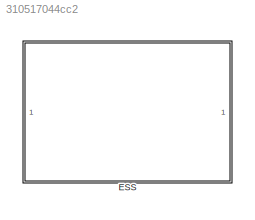
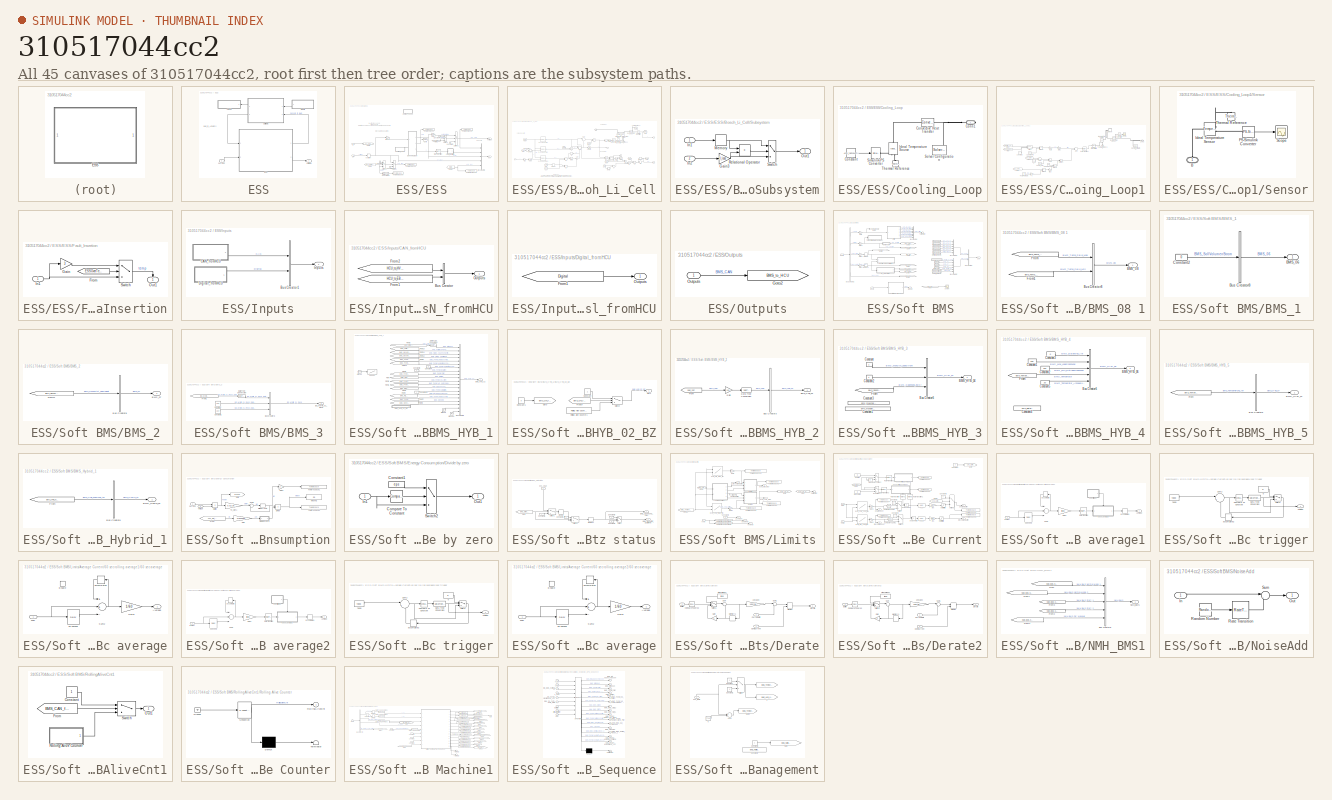
[diagram: thumbnail index - all 45 canvases of the model, root first then tree order]
MODEL slx_310517044cc2
KIND library
CONFIG AbsTol = auto
CONFIG EnableMultiTasking = off
CONFIG FixedStep = auto
CONFIG MaxStep = auto
CONFIG MinStep = auto
CONFIG RelTol = 1e-3
CONFIG SampleTimeConstraint = Unconstrained
CONFIG Solver = VariableStepAuto
CONFIG SolverName = VariableStepAuto
CONFIG StartTime = 0.0
CONFIG StopTime = 10.0
BLOCK [SubSystem] ESS
  Ports = [1, 1]
  RequestExecContextInheritance = off
  Variant = off
BLOCK [SubSystem] ESS/ESS
  Ports = [2, 2]
  RequestExecContextInheritance = off
  Variant = off
BLOCK [Memory] ESS/ESS/0 current
  InheritSampleTime = on
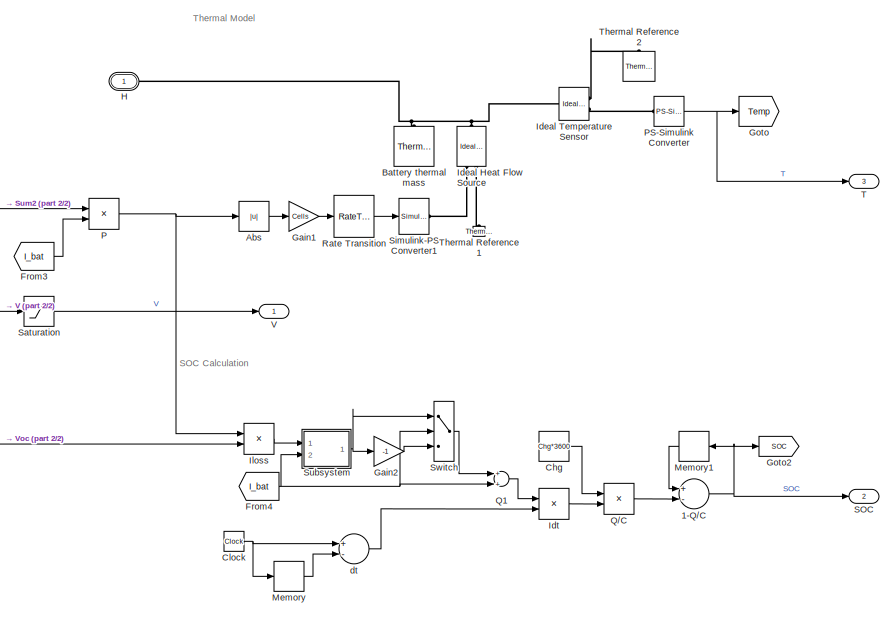
[diagram: ESS/ESS/Bosch_Li_Cell - part 1/2, right side, full height]
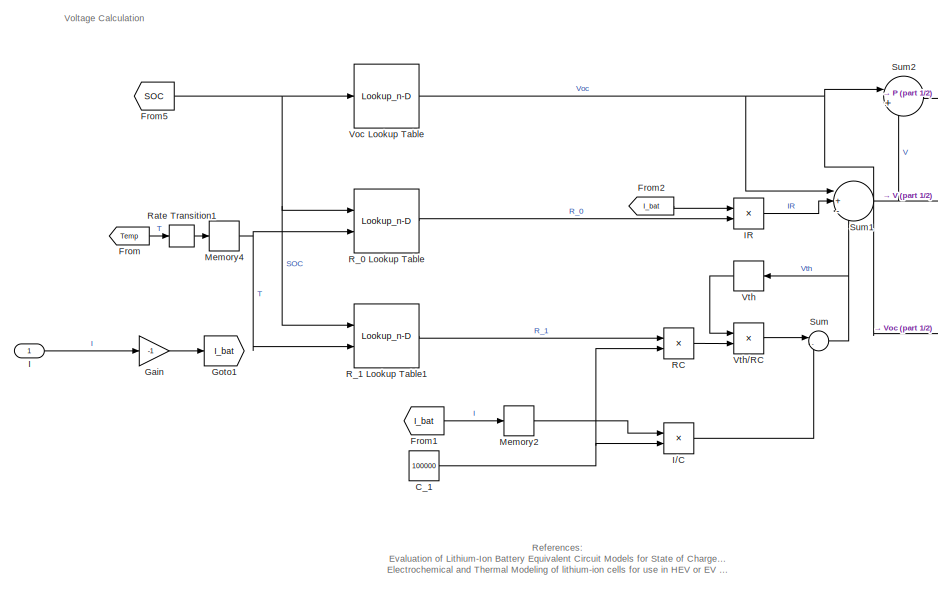
[diagram: ESS/ESS/Bosch_Li_Cell - part 2/2, left side, full height]
BLOCK [SubSystem] ESS/ESS/Bosch_Li_Cell
  Ports = [1, 3, 0, 0, 0, 1]
  RequestExecContextInheritance = off
  Variant = off
BLOCK [Sum] ESS/ESS/Bosch_Li_Cell/1-Q//C
  InputSameDT = off
  Inputs = +-
  OutDataTypeStr = Inherit: Inherit via internal rule
  Ports = [2, 1]
  SaturateOnIntegerOverflow = off
BLOCK [Abs] ESS/ESS/Bosch_Li_Cell/Abs
  SaturateOnIntegerOverflow = off
BLOCK [Reference] ESS/ESS/Bosch_Li_Cell/Battery thermal mass  REF=fl_lib/Thermal/Thermal Elements/Thermal Mass
  Ports = [0, 0, 0, 0, 0, 1]
  SourceBlock = fl_lib/Thermal/Thermal Elements/Thermal Mass
  SourceProductBaseCode = SS
  SourceProductName = Simscape
  SourceType = Thermal Mass
BLOCK [Constant] ESS/ESS/Bosch_Li_Cell/C_1
  Value = 100000
BLOCK [Constant] ESS/ESS/Bosch_Li_Cell/Chg
  Value = Chg*3600
BLOCK [Clock] ESS/ESS/Bosch_Li_Cell/Clock
BLOCK [From] ESS/ESS/Bosch_Li_Cell/From
  GotoTag = Temp
BLOCK [From] ESS/ESS/Bosch_Li_Cell/From1
  GotoTag = I_bat
BLOCK [From] ESS/ESS/Bosch_Li_Cell/From2
  GotoTag = I_bat
BLOCK [From] ESS/ESS/Bosch_Li_Cell/From3
  GotoTag = I_bat
BLOCK [From] ESS/ESS/Bosch_Li_Cell/From4
  GotoTag = I_bat
BLOCK [From] ESS/ESS/Bosch_Li_Cell/From5
  GotoTag = SOC
BLOCK [Gain] ESS/ESS/Bosch_Li_Cell/Gain
  Gain = -1
  OutDataTypeStr = Inherit: Inherit via internal rule
  ParamDataTypeStr = Inherit: Inherit via internal rule
  SaturateOnIntegerOverflow = off
BLOCK [Gain] ESS/ESS/Bosch_Li_Cell/Gain1
  Gain = Cells
  OutDataTypeStr = Inherit: Inherit via internal rule
  ParamDataTypeStr = Inherit: Inherit via internal rule
  SaturateOnIntegerOverflow = off
BLOCK [Gain] ESS/ESS/Bosch_Li_Cell/Gain2
  Gain = -1
  OutDataTypeStr = Inherit: Inherit via internal rule
  ParamDataTypeStr = Inherit: Inherit via internal rule
  SaturateOnIntegerOverflow = off
BLOCK [Goto] ESS/ESS/Bosch_Li_Cell/Goto
  GotoTag = Temp
BLOCK [Goto] ESS/ESS/Bosch_Li_Cell/Goto1
  GotoTag = I_bat
BLOCK [Goto] ESS/ESS/Bosch_Li_Cell/Goto2
  GotoTag = SOC
BLOCK [PMIOPort] ESS/ESS/Bosch_Li_Cell/H
  Port = 1
  Side = Left
  Tag = PMCPort
BLOCK [Inport] ESS/ESS/Bosch_Li_Cell/I
  IconDisplay = Port number
BLOCK [Product] ESS/ESS/Bosch_Li_Cell/I//C
  InputSameDT = off
  Inputs = */
  OutDataTypeStr = Inherit: Inherit via internal rule
  Ports = [2, 1]
  RndMeth = Floor
  SaturateOnIntegerOverflow = off
BLOCK [Product] ESS/ESS/Bosch_Li_Cell/IR
  InputSameDT = off
  Inputs = **
  OutDataTypeStr = Inherit: Inherit via internal rule
  Ports = [2, 1]
  RndMeth = Floor
  SaturateOnIntegerOverflow = off
BLOCK [Reference] ESS/ESS/Bosch_Li_Cell/Ideal Heat Flow Source  REF=fl_lib/Thermal/Thermal Sources/Ideal Heat Flow
Source
  Ports = [0, 0, 0, 0, 0, 1, 2]
  SourceBlock = fl_lib/Thermal/Thermal Sources/Ideal Heat Flow\nSource
  SourceProductBaseCode = SS
  SourceProductName = Simscape
  SourceType = Ideal Heat Flow\nSource
BLOCK [Reference] ESS/ESS/Bosch_Li_Cell/Ideal Temperature Sensor  REF=fl_lib/Thermal/Thermal Sensors/Ideal Temperature
Sensor
  Ports = [0, 0, 0, 0, 0, 1, 2]
  SourceBlock = fl_lib/Thermal/Thermal Sensors/Ideal Temperature\nSensor
  SourceProductBaseCode = SS
  SourceProductName = Simscape
  SourceType = Ideal Temperature\nSensor
BLOCK [Product] ESS/ESS/Bosch_Li_Cell/Idt
  InputSameDT = off
  Inputs = **
  OutDataTypeStr = Inherit: Inherit via internal rule
  Ports = [2, 1]
  RndMeth = Floor
  SaturateOnIntegerOverflow = off
BLOCK [Product] ESS/ESS/Bosch_Li_Cell/Iloss
  InputSameDT = off
  Inputs = */
  OutDataTypeStr = Inherit: Inherit via internal rule
  Ports = [2, 1]
  RndMeth = Floor
  SaturateOnIntegerOverflow = off
BLOCK [Memory] ESS/ESS/Bosch_Li_Cell/Memory
  InheritSampleTime = on
BLOCK [Memory] ESS/ESS/Bosch_Li_Cell/Memory1
  InheritSampleTime = on
  X0 = ess.plant.initial_soc/100
BLOCK [Memory] ESS/ESS/Bosch_Li_Cell/Memory2
  InheritSampleTime = on
BLOCK [Memory] ESS/ESS/Bosch_Li_Cell/Memory4
  X0 = 298
BLOCK [Product] ESS/ESS/Bosch_Li_Cell/P
  InputSameDT = off
  Inputs = **
  OutDataTypeStr = Inherit: Inherit via internal rule
  Ports = [2, 1]
  RndMeth = Floor
  SaturateOnIntegerOverflow = off
BLOCK [Reference] ESS/ESS/Bosch_Li_Cell/PS-Simulink Converter  REF=nesl_utility/PS-Simulink
Converter
  Ports = [0, 1, 0, 0, 0, 1]
  SourceBlock = nesl_utility/PS-Simulink\nConverter
  SourceProductBaseCode = SS
  SourceProductName = Simscape
  SourceType = PS-Simulink\nConverter
BLOCK [Product] ESS/ESS/Bosch_Li_Cell/Q//C
  InputSameDT = off
  Inputs = /*
  OutDataTypeStr = Inherit: Inherit via internal rule
  Ports = [2, 1]
  RndMeth = Floor
  SaturateOnIntegerOverflow = off
BLOCK [Sum] ESS/ESS/Bosch_Li_Cell/Q1
  InputSameDT = off
  OutDataTypeStr = Inherit: Inherit via internal rule
  Ports = [2, 1]
  SaturateOnIntegerOverflow = off
BLOCK [Product] ESS/ESS/Bosch_Li_Cell/RC
  InputSameDT = off
  Inputs = **
  OutDataTypeStr = Inherit: Inherit via internal rule
  Ports = [2, 1]
  RndMeth = Floor
  SaturateOnIntegerOverflow = off
BLOCK [Lookup_n-D] ESS/ESS/Bosch_Li_Cell/R_0 Lookup Table
  BreakpointsForDimension1 = SOC_bp
  BreakpointsForDimension2 = T_bp
  InternalRulePriority = Speed
  Ports = [2, 1]
  RndMeth = Simplest
  Table = R_0
  UseLastTableValue = on
BLOCK [Lookup_n-D] ESS/ESS/Bosch_Li_Cell/R_1 Lookup Table1
  BreakpointsForDimension1 = SOC_bp
  BreakpointsForDimension2 = T_bp
  InternalRulePriority = Speed
  Ports = [2, 1]
  RndMeth = Simplest
  Table = R_1
  UseLastTableValue = on
BLOCK [RateTransition] ESS/ESS/Bosch_Li_Cell/Rate Transition
BLOCK [RateTransition] ESS/ESS/Bosch_Li_Cell/Rate Transition1
BLOCK [Outport] ESS/ESS/Bosch_Li_Cell/SOC
  IconDisplay = Port number
  Port = 2
BLOCK [Saturate] ESS/ESS/Bosch_Li_Cell/Saturation
  InputPortMap = u0
  LowerLimit = 2.8
  Ports = [1, 1]
  UpperLimit = 4.2
BLOCK [Reference] ESS/ESS/Bosch_Li_Cell/Simulink-PS Converter1  REF=nesl_utility/Simulink-PS
Converter
  Ports = [1, 0, 0, 0, 0, 0, 1]
  SourceBlock = nesl_utility/Simulink-PS\nConverter
  SourceProductBaseCode = SS
  SourceProductName = Simscape
  SourceType = Simulink-PS\nConverter
BLOCK [SubSystem] ESS/ESS/Bosch_Li_Cell/Subsystem
  Ports = [2, 1]
  RequestExecContextInheritance = off
  Variant = off
BLOCK [Gain] ESS/ESS/Bosch_Li_Cell/Subsystem/Gain3
  Gain = I_loss
  OutDataTypeStr = Inherit: Inherit via internal rule
  ParamDataTypeStr = Inherit: Inherit via internal rule
  SaturateOnIntegerOverflow = off
BLOCK [Inport] ESS/ESS/Bosch_Li_Cell/Subsystem/In1
  IconDisplay = Port number
BLOCK [Inport] ESS/ESS/Bosch_Li_Cell/Subsystem/In2
  IconDisplay = Port number
  Port = 2
BLOCK [Memory] ESS/ESS/Bosch_Li_Cell/Subsystem/Memory
  InheritSampleTime = on
BLOCK [Outport] ESS/ESS/Bosch_Li_Cell/Subsystem/Out1
  IconDisplay = Port number
BLOCK [RelationalOperator] ESS/ESS/Bosch_Li_Cell/Subsystem/Relational Operator
  InputSameDT = off
  Operator = >
  OutDataTypeStr = boolean
  Ports = [2, 1]
BLOCK [Switch] ESS/ESS/Bosch_Li_Cell/Subsystem/Switch
  Criteria = u2 > Threshold
  InputSameDT = off
  SaturateOnIntegerOverflow = off
BLOCK [Sum] ESS/ESS/Bosch_Li_Cell/Sum
  IconShape = round
  InputSameDT = off
  Inputs = |-+
  OutDataTypeStr = Inherit: Inherit via internal rule
  Ports = [2, 1]
  SaturateOnIntegerOverflow = off
BLOCK [Sum] ESS/ESS/Bosch_Li_Cell/Sum1
  IconShape = round
  InputSameDT = off
  Inputs = |+--
  OutDataTypeStr = Inherit: Inherit via internal rule
  Ports = [3, 1]
  SaturateOnIntegerOverflow = off
BLOCK [Sum] ESS/ESS/Bosch_Li_Cell/Sum2
  IconShape = round
  InputSameDT = off
  Inputs = |+-
  OutDataTypeStr = Inherit: Inherit via internal rule
  Ports = [2, 1]
  SaturateOnIntegerOverflow = off
BLOCK [Switch] ESS/ESS/Bosch_Li_Cell/Switch
  InputSameDT = off
  SaturateOnIntegerOverflow = off
BLOCK [Outport] ESS/ESS/Bosch_Li_Cell/T
  IconDisplay = Port number
  Port = 3
BLOCK [Reference] ESS/ESS/Bosch_Li_Cell/Thermal Reference1  REF=fl_lib/Thermal/Thermal Elements/Thermal Reference
  Ports = [0, 0, 0, 0, 0, 1]
  SourceBlock = fl_lib/Thermal/Thermal Elements/Thermal Reference
  SourceProductBaseCode = SS
  SourceProductName = Simscape
  SourceType = Thermal Reference
BLOCK [Reference] ESS/ESS/Bosch_Li_Cell/Thermal Reference2  REF=fl_lib/Thermal/Thermal Elements/Thermal Reference
  Ports = [0, 0, 0, 0, 0, 1]
  SourceBlock = fl_lib/Thermal/Thermal Elements/Thermal Reference
  SourceProductBaseCode = SS
  SourceProductName = Simscape
  SourceType = Thermal Reference
BLOCK [Outport] ESS/ESS/Bosch_Li_Cell/V
  IconDisplay = Port number
BLOCK [Lookup_n-D] ESS/ESS/Bosch_Li_Cell/Voc Lookup Table
  BreakpointsForDimension1 = SOC_bp
  InternalRulePriority = Speed
  NumberOfTableDimensions = 1
  Ports = [1, 1]
  RndMeth = Simplest
  Table = Em
BLOCK [Memory] ESS/ESS/Bosch_Li_Cell/Vth
  InheritSampleTime = on
  LinearizeAsDelay = on
BLOCK [Product] ESS/ESS/Bosch_Li_Cell/Vth//RC
  InputSameDT = off
  Inputs = */
  OutDataTypeStr = Inherit: Inherit via internal rule
  Ports = [2, 1]
  RndMeth = Floor
  SaturateOnIntegerOverflow = off
BLOCK [Sum] ESS/ESS/Bosch_Li_Cell/dt
  InputSameDT = off
  Inputs = +-
  OutDataTypeStr = Inherit: Inherit via internal rule
  Ports = [2, 1]
  SaturateOnIntegerOverflow = off
BLOCK [BusCreator] ESS/ESS/Bus Creator1
  DisplayOption = bar
  InheritFromInputs = on
  Inputs = 5
  Ports = [5, 1]
BLOCK [Constant] ESS/ESS/Constant1
  Value = 0
BLOCK [Constant] ESS/ESS/Constant2
  Value = 0
BLOCK [Constant] ESS/ESS/Constant3
  Value = 0
BLOCK [Constant] ESS/ESS/Constant4
  Value = 0
BLOCK [SubSystem] ESS/ESS/Cooling_Loop
  Ports = [0, 0, 0, 0, 0, 0, 1]
  RequestExecContextInheritance = off
  Variant = off
BLOCK [PMIOPort] ESS/ESS/Cooling_Loop/Conn1
  Port = 1
  Side = Right
BLOCK [Constant] ESS/ESS/Cooling_Loop/Constant
  Value = Atm_temp+273+0.5
BLOCK [Reference] ESS/ESS/Cooling_Loop/Convective Heat Transfer  REF=fl_lib/Thermal/Thermal Elements/Convective Heat
Transfer
  Ports = [0, 0, 0, 0, 0, 1, 1]
  SourceBlock = fl_lib/Thermal/Thermal Elements/Convective Heat\nTransfer
  SourceProductBaseCode = SS
  SourceProductName = Simscape
  SourceType = Convective Heat\nTransfer
BLOCK [Reference] ESS/ESS/Cooling_Loop/Ideal Temperature Source  REF=fl_lib/Thermal/Thermal Sources/Ideal Temperature
Source
  Ports = [0, 0, 0, 0, 0, 1, 2]
  SourceBlock = fl_lib/Thermal/Thermal Sources/Ideal Temperature\nSource
  SourceProductBaseCode = SS
  SourceProductName = Simscape
  SourceType = Ideal Temperature\nSource
BLOCK [Reference] ESS/ESS/Cooling_Loop/Simulink-PS Converter  REF=nesl_utility/Simulink-PS
Converter
  Ports = [1, 0, 0, 0, 0, 0, 1]
  SourceBlock = nesl_utility/Simulink-PS\nConverter
  SourceProductBaseCode = SS
  SourceProductName = Simscape
  SourceType = Simulink-PS\nConverter
BLOCK [Reference] ESS/ESS/Cooling_Loop/Solver Configuration  REF=nesl_utility/Solver
Configuration
  Ports = [0, 0, 0, 0, 0, 0, 1]
  SourceBlock = nesl_utility/Solver\nConfiguration
  SourceProductBaseCode = SS
  SourceProductName = Simscape
  SourceType = Solver\nConfiguration
BLOCK [Reference] ESS/ESS/Cooling_Loop/Thermal Reference  REF=fl_lib/Thermal/Thermal Elements/Thermal Reference
  Ports = [0, 0, 0, 0, 0, 1]
  SourceBlock = fl_lib/Thermal/Thermal Elements/Thermal Reference
  SourceProductBaseCode = SS
  SourceProductName = Simscape
  SourceType = Thermal Reference
BLOCK [SubSystem] ESS/ESS/Cooling_Loop1
  Commented = on
  Ports = [0, 0, 0, 0, 0, 1]
  RequestExecContextInheritance = off
  Variant = off
BLOCK [Constant] ESS/ESS/Cooling_Loop1/ACcompRPM
  Value = 8600
BLOCK [Sum] ESS/ESS/Cooling_Loop1/Add
  InputSameDT = off
  Inputs = --
  OutDataTypeStr = Inherit: Inherit via internal rule
  Ports = [2, 1]
  SaturateOnIntegerOverflow = off
BLOCK [Sum] ESS/ESS/Cooling_Loop1/Add2
  InputSameDT = off
  Inputs = +-
  OutDataTypeStr = Inherit: Inherit via internal rule
  Ports = [2, 1]
  SaturateOnIntegerOverflow = off
BLOCK [Sum] ESS/ESS/Cooling_Loop1/Add4
  InputSameDT = off
  Inputs = +-
  OutDataTypeStr = Inherit: Inherit via internal rule
  Ports = [2, 1]
  SaturateOnIntegerOverflow = off
BLOCK [PMIOPort] ESS/ESS/Cooling_Loop1/Conn2
  Port = 1
  Side = Left
BLOCK [Constant] ESS/ESS/Cooling_Loop1/Constant3
  Value = 0
BLOCK [Constant] ESS/ESS/Cooling_Loop1/CoolaSpecHeat
  Value = 4200
BLOCK [Product] ESS/ESS/Cooling_Loop1/Divide4
  InputSameDT = off
  Inputs = **
  OutDataTypeStr = Inherit: Inherit via internal rule
  Ports = [2, 1]
  RndMeth = Floor
  SaturateOnIntegerOverflow = off
BLOCK [Product] ESS/ESS/Cooling_Loop1/Divide5
  InputSameDT = off
  Inputs = **
  OutDataTypeStr = Inherit: Inherit via internal rule
  Ports = [2, 1]
  RndMeth = Floor
  SaturateOnIntegerOverflow = off
BLOCK [Product] ESS/ESS/Cooling_Loop1/Divide6
  InputSameDT = off
  Inputs = **
  OutDataTypeStr = Inherit: Inherit via internal rule
  Ports = [2, 1]
  RndMeth = Floor
  SaturateOnIntegerOverflow = off
BLOCK [Product] ESS/ESS/Cooling_Loop1/Divide8
  InputSameDT = off
  Inputs = **
  OutDataTypeStr = Inherit: Inherit via internal rule
  Ports = [2, 1]
  RndMeth = Floor
  SaturateOnIntegerOverflow = off
BLOCK [From] ESS/ESS/Cooling_Loop1/From
  GotoTag = ESSCompEna
  TagVisibility = global
BLOCK [From] ESS/ESS/Cooling_Loop1/From1
  GotoTag = ACComp_control
  TagVisibility = global
BLOCK [From] ESS/ESS/Cooling_Loop1/From2
  GotoTag = ess_temp
  TagVisibility = global
BLOCK [From] ESS/ESS/Cooling_Loop1/From3
  GotoTag = ESS_pump_control
  TagVisibility = global
BLOCK [Gain] ESS/ESS/Cooling_Loop1/Gain
  Gain = 1/1000
  OutDataTypeStr = Inherit: Inherit via internal rule
  ParamDataTypeStr = Inherit: Inherit via internal rule
  SaturateOnIntegerOverflow = off
BLOCK [Gain] ESS/ESS/Cooling_Loop1/Gain1
  Gain = 1/6000
  OutDataTypeStr = Inherit: Inherit via internal rule
  ParamDataTypeStr = Inherit: Inherit via internal rule
  SaturateOnIntegerOverflow = off
BLOCK [Reference] ESS/ESS/Cooling_Loop1/Ideal Heat Flow Sensor  REF=fl_lib/Thermal/Thermal Sensors/Heat Flow Rate
Sensor
  Ports = [0, 0, 0, 0, 0, 1, 2]
  SourceBlock = fl_lib/Thermal/Thermal Sensors/Heat Flow Rate\nSensor
  SourceProductBaseCode = SS
  SourceProductName = Simscape
  SourceType = Heat Flow Rate\nSensor
BLOCK [Reference] ESS/ESS/Cooling_Loop1/Ideal Heat Flow Source  REF=fl_lib/Thermal/Thermal Sources/Controlled Heat Flow
Rate Source
  Ports = [0, 0, 0, 0, 0, 1, 2]
  SourceBlock = fl_lib/Thermal/Thermal Sources/Controlled Heat Flow\nRate Source
  SourceProductBaseCode = SS
  SourceProductName = Simscape
  SourceType = Controlled Heat Flow\nRate Source
BLOCK [Constant] ESS/ESS/Cooling_Loop1/K
  Value = 273.15
BLOCK [Reference] ESS/ESS/Cooling_Loop1/PS-Simulink Converter  REF=nesl_utility/PS-Simulink
Converter
  Ports = [0, 1, 0, 0, 0, 1]
  SourceBlock = nesl_utility/PS-Simulink\nConverter
  SourceProductBaseCode = SS
  SourceProductName = Simscape
  SourceType = PS-Simulink\nConverter
BLOCK [Constant] ESS/ESS/Cooling_Loop1/PumpFlowRate
  Value = 1.8
BLOCK [RateTransition] ESS/ESS/Cooling_Loop1/Rate Transition1
BLOCK [Scope] ESS/ESS/Cooling_Loop1/Scope
  NumInputPorts = 1
  Ports = [1]
  ScopeSpecificationString = Simulink.scopes.TimeScopeBlockCfg('CurrentConfiguration', extmgr.ConfigurationSet(extmgr.Configuration('Core','General UI',true),extmgr.Configuration('Core','Source UI',true),extmgr.Configuration('Sources','WiredSimulink',true,'DataLoggingVariableName','ScopeData7'),extmgr.Configuration('Visuals','Time Domain',true,'SerializedDisplays',{struct('MinYLimReal','-1.00000','MaxYLimReal','1.00000','YLab...<+1438ch>
BLOCK [SubSystem] ESS/ESS/Cooling_Loop1/Sensor
  Ports = [0, 0, 0, 0, 0, 1]
  RequestExecContextInheritance = off
  Variant = off
BLOCK [PMIOPort] ESS/ESS/Cooling_Loop1/Sensor/B
  Port = 1
  Side = Left
BLOCK [Reference] ESS/ESS/Cooling_Loop1/Sensor/Ideal Temperature Sensor  REF=fl_lib/Thermal/Thermal Sensors/Temperature Sensor
  Ports = [0, 0, 0, 0, 0, 1, 2]
  SourceBlock = fl_lib/Thermal/Thermal Sensors/Temperature Sensor
  SourceProductBaseCode = SS
  SourceProductName = Simscape
  SourceType = Temperature Sensor
BLOCK [Reference] ESS/ESS/Cooling_Loop1/Sensor/PS-Simulink Converter  REF=nesl_utility/PS-Simulink
Converter
  Ports = [0, 1, 0, 0, 0, 1]
  SourceBlock = nesl_utility/PS-Simulink\nConverter
  SourceProductBaseCode = SS
  SourceProductName = Simscape
  SourceType = PS-Simulink\nConverter
BLOCK [Scope] ESS/ESS/Cooling_Loop1/Sensor/Scope
  NumInputPorts = 1
  Ports = [1]
  ScopeSpecificationString = Simulink.scopes.TimeScopeBlockCfg('CurrentConfiguration', extmgr.ConfigurationSet(extmgr.Configuration('Core','General UI',true),extmgr.Configuration('Core','Source UI',true),extmgr.Configuration('Sources','WiredSimulink',true,'DataLoggingVariableName','ScopeData6'),extmgr.Configuration('Visuals','Time Domain',true,'SerializedDisplays',{struct('MinYLimReal','298.14642','MaxYLimReal','298.18225','Y...<+1419ch>
BLOCK [Reference] ESS/ESS/Cooling_Loop1/Sensor/Thermal Reference  REF=fl_lib/Thermal/Thermal Elements/Thermal Reference
  Ports = [0, 0, 0, 0, 0, 1]
  SourceBlock = fl_lib/Thermal/Thermal Elements/Thermal Reference
  SourceProductBaseCode = SS
  SourceProductName = Simscape
  SourceType = Thermal Reference
BLOCK [Reference] ESS/ESS/Cooling_Loop1/Simulink-PS Converter3  REF=nesl_utility/Simulink-PS
Converter
  Ports = [1, 0, 0, 0, 0, 0, 1]
  SourceBlock = nesl_utility/Simulink-PS\nConverter
  SourceProductBaseCode = SS
  SourceProductName = Simscape
  SourceType = Simulink-PS\nConverter
BLOCK [Reference] ESS/ESS/Cooling_Loop1/Solver Configuration1  REF=nesl_utility/Solver
Configuration
  Ports = [0, 0, 0, 0, 0, 0, 1]
  SourceBlock = nesl_utility/Solver\nConfiguration
  SourceProductBaseCode = SS
  SourceProductName = Simscape
  SourceType = Solver\nConfiguration
BLOCK [Switch] ESS/ESS/Cooling_Loop1/Switch
  Criteria = u2 ~= 0
  InputSameDT = off
  SaturateOnIntegerOverflow = off
BLOCK [Reference] ESS/ESS/Cooling_Loop1/Thermal Reference3  REF=fl_lib/Thermal/Thermal Elements/Thermal Reference
  Ports = [0, 0, 0, 0, 0, 1]
  SourceBlock = fl_lib/Thermal/Thermal Elements/Thermal Reference
  SourceProductBaseCode = SS
  SourceProductName = Simscape
  SourceType = Thermal Reference
BLOCK [Constant] ESS/ESS/Cooling_Loop1/coolant_temp
  Value = 25
BLOCK [Gain] ESS/ESS/Cooling_Loop1/h
  Gain = 1000/3600
  OutDataTypeStr = Inherit: Inherit via internal rule
  ParamDataTypeStr = Inherit: Inherit via internal rule
  SaturateOnIntegerOverflow = off
BLOCK [Gain] ESS/ESS/Cooling_Loop1/tloop
  Gain = 0.01
  OutDataTypeStr = Inherit: Inherit via internal rule
  ParamDataTypeStr = Inherit: Inherit via internal rule
  SaturateOnIntegerOverflow = off
BLOCK [Inport] ESS/ESS/Crr 
  IconDisplay = Port number
  Port = 2
BLOCK [DataTypeConversion] ESS/ESS/Data Type Conversion
  OutDataTypeStr = double
  RndMeth = Floor
  SaturateOnIntegerOverflow = off
BLOCK [SubSystem] ESS/ESS/Fault_Insertion
  Ports = [1, 1]
  RequestExecContextInheritance = off
  Variant = off
BLOCK [From] ESS/ESS/Fault_Insertion/From
  GotoTag = ESSOverTemp
BLOCK [Gain] ESS/ESS/Fault_Insertion/Gain
  Gain = 3
  OutDataTypeStr = Inherit: Inherit via internal rule
  ParamDataTypeStr = Inherit: Inherit via internal rule
  SaturateOnIntegerOverflow = off
BLOCK [Inport] ESS/ESS/Fault_Insertion/In1
  IconDisplay = Port number
BLOCK [Outport] ESS/ESS/Fault_Insertion/Out1
  IconDisplay = Port number
BLOCK [Switch] ESS/ESS/Fault_Insertion/Switch
  InputSameDT = off
  SaturateOnIntegerOverflow = off
  Threshold = 1
BLOCK [From] ESS/ESS/From1
  GotoTag = ess_mainc_stat
BLOCK [From] ESS/ESS/From4
  GotoTag = SOC
  TagVisibility = global
BLOCK [From] ESS/ESS/From6
  GotoTag = ess_mainc_stat
BLOCK [Gain] ESS/ESS/Gain1
  Gain = Cells*0.9824
  OutDataTypeStr = Inherit: Inherit via internal rule
  ParamDataTypeStr = Inherit: Inherit via internal rule
  SaturateOnIntegerOverflow = off
BLOCK [Goto] ESS/ESS/Goto
  GotoTag = SOC
  TagVisibility = global
BLOCK [Goto] ESS/ESS/Goto6
  GotoTag = ess_mainc_stat
BLOCK [Inport] ESS/ESS/In 
  IconDisplay = Port number
BLOCK [RateTransition] ESS/ESS/Rate Transition
  X0 = 273.15+25
BLOCK [Switch] ESS/ESS/Switch1
  InputSameDT = off
  SaturateOnIntegerOverflow = off
  Threshold = 1
BLOCK [Switch] ESS/ESS/Switch2
  InputSameDT = off
  SaturateOnIntegerOverflow = off
  Threshold = 1
BLOCK [Switch] ESS/ESS/Switch3
  InputSameDT = off
  SaturateOnIntegerOverflow = off
  Threshold = 5
BLOCK [Switch] ESS/ESS/Switch4
  InputSameDT = off
  SaturateOnIntegerOverflow = off
  Threshold = 5
BLOCK [ToWorkspace] ESS/ESS/To Workspace1
  Decimation = WORKSPACE_DECIMATION
  MaxDataPoints = inf
  Ports = [1]
  SampleTime = -1
  VariableName = SOC
BLOCK [ToWorkspace] ESS/ESS/To Workspace2
  Decimation = WORKSPACE_DECIMATION
  MaxDataPoints = inf
  Ports = [1]
  SampleTime = -1
  VariableName = BMS_SOC_hist
BLOCK [ToWorkspace] ESS/ESS/To Workspace4
  Decimation = WORKSPACE_DECIMATION
  MaxDataPoints = inf
  Ports = [1]
  SampleTime = -1
  VariableName = ess_current_hist
BLOCK [ToWorkspace] ESS/ESS/To Workspace5
  Decimation = WORKSPACE_DECIMATION
  MaxDataPoints = inf
  Ports = [1]
  SampleTime = -1
  VariableName = ess_term_voltage_hist
BLOCK [ToWorkspace] ESS/ESS/To Workspace6
  Decimation = WORKSPACE_DECIMATION
  MaxDataPoints = inf
  Ports = [1]
  SampleTime = -1
  VariableName = ess_mainc_hist
BLOCK [Outport] ESS/ESS/Voltage
  IconDisplay = Port number
  Port = 2
BLOCK [Outport] ESS/ESS/out
  IconDisplay = Port number
BLOCK [Gain] ESS/ESS/tloop2
  Gain = -1
  OutDataTypeStr = Inherit: Inherit via internal rule
  ParamDataTypeStr = Inherit: Inherit via internal rule
  SaturateOnIntegerOverflow = off
BLOCK [SubSystem] ESS/Inputs
  Ports = [0, 1]
  RequestExecContextInheritance = off
  Variant = off
BLOCK [BusCreator] ESS/Inputs/Bus Creator1
  DisplayOption = bar
  InheritFromInputs = on
  Inputs = 2
  Ports = [2, 1]
BLOCK [SubSystem] ESS/Inputs/CAN_fromHCU
  Ports = [0, 1]
  RequestExecContextInheritance = off
  Variant = off
BLOCK [BusCreator] ESS/Inputs/CAN_fromHCU/Bus Creator
  DisplayOption = bar
  InheritFromInputs = on
  Inputs = 2
  Ports = [2, 1]
BLOCK [From] ESS/Inputs/CAN_fromHCU/From1
  GotoTag = HCU_to_EBCAN
  TagVisibility = global
BLOCK [From] ESS/Inputs/CAN_fromHCU/From2
  GotoTag = HCU_to_HV_CAN
  TagVisibility = global
BLOCK [Outport] ESS/Inputs/CAN_fromHCU/Outputs
  IconDisplay = Port number
BLOCK [SubSystem] ESS/Inputs/Digital_fromHCU
  Ports = [0, 1]
  RequestExecContextInheritance = off
  Variant = off
BLOCK [From] ESS/Inputs/Digital_fromHCU/From1
  GotoTag = Digital
  TagVisibility = global
BLOCK [Outport] ESS/Inputs/Digital_fromHCU/Outputs
  IconDisplay = Port number
BLOCK [Outport] ESS/Inputs/Inputs
  IconDisplay = Port number
BLOCK [SubSystem] ESS/Outputs
  Ports = [1]
  RequestExecContextInheritance = off
  Variant = off
BLOCK [Goto] ESS/Outputs/Goto2
  GotoTag = BMS_to_HCU
  TagVisibility = global
BLOCK [Inport] ESS/Outputs/Outputs
  IconDisplay = Port number
BLOCK [SubSystem] ESS/Soft BMS
  Ports = [2, 2]
  RequestExecContextInheritance = off
  Variant = off
BLOCK [SubSystem] ESS/Soft BMS/BMS_08 1
  Ports = [0, 1]
  RequestExecContextInheritance = off
  Variant = off
BLOCK [Outport] ESS/Soft BMS/BMS_08 1/BMS_08
  IconDisplay = Port number
BLOCK [BusCreator] ESS/Soft BMS/BMS_08 1/Bus Creator8
  DisplayOption = bar
  InheritFromInputs = on
  Inputs = 2
  Ports = [2, 1]
BLOCK [From] ESS/Soft BMS/BMS_08 1/From
  GotoTag = BMS_Temp_Zelle_Max
  TagVisibility = global
BLOCK [From] ESS/Soft BMS/BMS_08 1/From1
  GotoTag = BMS_Temp_Zelle_Min
  TagVisibility = global
BLOCK [SubSystem] ESS/Soft BMS/BMS_1
  Ports = [0, 1]
  RequestExecContextInheritance = off
  Variant = off
BLOCK [Outport] ESS/Soft BMS/BMS_1/BMS_06
  IconDisplay = Port number
BLOCK [BusCreator] ESS/Soft BMS/BMS_1/Bus Creator8
  DisplayOption = bar
  InheritFromInputs = on
  Inputs = 1
  Ports = [1, 1]
BLOCK [Constant] ESS/Soft BMS/BMS_1/Constant2
  Value = 0
BLOCK [SubSystem] ESS/Soft BMS/BMS_2
  Ports = [0, 1]
  RequestExecContextInheritance = off
  Variant = off
BLOCK [Outport] ESS/Soft BMS/BMS_2/BMS_07
  IconDisplay = Port number
BLOCK [BusCreator] ESS/Soft BMS/BMS_2/Bus Creator8
  DisplayOption = bar
  InheritFromInputs = on
  Inputs = 1
  Ports = [1, 1]
BLOCK [From] ESS/Soft BMS/BMS_2/From11
  GotoTag = BMS_Gesamtst_Spgfreiheit
  TagVisibility = global
BLOCK [SubSystem] ESS/Soft BMS/BMS_3
  Ports = [0, 1]
  RequestExecContextInheritance = off
  Variant = off
BLOCK [BusCreator] ESS/Soft BMS/BMS_3/Bus Creator8
  DisplayOption = bar
  InheritFromInputs = on
  Inputs = 3
  Ports = [3, 1]
BLOCK [Constant] ESS/Soft BMS/BMS_3/Constant
  Value = 255
BLOCK [Constant] ESS/Soft BMS/BMS_3/Constant1
  Value = 254
BLOCK [DataTypeConversion] ESS/Soft BMS/BMS_3/Data Type Conversion
  RndMeth = Floor
  SaturateOnIntegerOverflow = off
BLOCK [From] ESS/Soft BMS/BMS_3/From1
  GotoTag = ISO_Hybrid_01_Req_Data_4
  TagVisibility = global
BLOCK [Outport] ESS/Soft BMS/BMS_3/ISO_Hybrid_01_Resp
  IconDisplay = Port number
BLOCK [SubSystem] ESS/Soft BMS/BMS_HYB_1
  Ports = [0, 1]
  RequestExecContextInheritance = off
  Variant = off
BLOCK [Outport] ESS/Soft BMS/BMS_HYB_1/BMS_HYB_02
  IconDisplay = Port number
BLOCK [SubSystem] ESS/Soft BMS/BMS_HYB_1/BMS_HYB_02_BZ
  Ports = [0, 1]
  RequestExecContextInheritance = off
  Variant = off
BLOCK [Constant] ESS/Soft BMS/BMS_HYB_1/BMS_HYB_02_BZ/Constant
BLOCK [Constant] ESS/Soft BMS/BMS_HYB_1/BMS_HYB_02_BZ/Constant1
  Value = 0
BLOCK [From] ESS/Soft BMS/BMS_HYB_1/BMS_HYB_02_BZ/From14
  GotoTag = BMS_CAN_fault
  TagVisibility = global
BLOCK [Goto] ESS/Soft BMS/BMS_HYB_1/BMS_HYB_02_BZ/Goto
  GotoTag = BMS_CAN_fault
  TagVisibility = global
BLOCK [Outport] ESS/Soft BMS/BMS_HYB_1/BMS_HYB_02_BZ/Out1
  IconDisplay = Port number
BLOCK [Reference] ESS/Soft BMS/BMS_HYB_1/BMS_HYB_02_BZ/Rolling Alive Counter1  REF=RollingAliveCounter/Rolling Alive Counter
  Ports = [0, 1]
  SourceBlock = RollingAliveCounter/Rolling Alive Counter
  SourceProductName = The database <userpath>\AppData\Roaming\MathWorks\MATLAB\R2017b\slblocks_master.db is locked, or a table in the database is locked. (database is locked)
  SourceType = SubSystem
BLOCK [Switch] ESS/Soft BMS/BMS_HYB_1/BMS_HYB_02_BZ/Switch
  Criteria = u2 > Threshold
  InputSameDT = off
  SaturateOnIntegerOverflow = off
BLOCK [BusCreator] ESS/Soft BMS/BMS_HYB_1/Bus Creator3
  DisplayOption = bar
  InheritFromInputs = on
  Inputs = 20
  Ports = [20, 1]
BLOCK [Clock] ESS/Soft BMS/BMS_HYB_1/Clock3
  Commented = on
BLOCK [Constant] ESS/Soft BMS/BMS_HYB_1/Constant12
  Value = 0
BLOCK [Constant] ESS/Soft BMS/BMS_HYB_1/Constant7
  Value = 0
BLOCK [Constant] ESS/Soft BMS/BMS_HYB_1/Constant8
  Value = 0
BLOCK [DataTypeConversion] ESS/Soft BMS/BMS_HYB_1/Data Type Conversion
  RndMeth = Floor
  SaturateOnIntegerOverflow = off
BLOCK [From] ESS/Soft BMS/BMS_HYB_1/From
  GotoTag = BMS_IstStrom
  TagVisibility = global
BLOCK [From] ESS/Soft BMS/BMS_HYB_1/From1
  GotoTag = BMS_IstSpannung
  TagVisibility = global
BLOCK [From] ESS/Soft BMS/BMS_HYB_1/From10
  GotoTag = BMS_Notfallkuehlung
  TagVisibility = global
BLOCK [From] ESS/Soft BMS/BMS_HYB_1/From11
  GotoTag = BMS_Gesamtst_Spgfreiheit
  TagVisibility = global
BLOCK [From] ESS/Soft BMS/BMS_HYB_1/From12
  GotoTag = BMS_Gesamtst_Spgfreiheit
  TagVisibility = global
BLOCK [From] ESS/Soft BMS/BMS_HYB_1/From13
  GotoTag = BMS_Fehler_Notabschaltung_Crash
  TagVisibility = global
BLOCK [From] ESS/Soft BMS/BMS_HYB_1/From2
  GotoTag = BMS_Fehler_Pilot
  TagVisibility = global
BLOCK [From] ESS/Soft BMS/BMS_HYB_1/From3
  GotoTag = BMS_IstModus
  TagVisibility = global
BLOCK [From] ESS/Soft BMS/BMS_HYB_1/From4
  GotoTag = BMS_Init_abgeschlossen
  TagVisibility = global
BLOCK [From] ESS/Soft BMS/BMS_HYB_1/From5
  GotoTag = BMS_Fehler_HS_offen
  TagVisibility = global
BLOCK [From] ESS/Soft BMS/BMS_HYB_1/From6
  GotoTag = BMS_Fehler_verschweisst
  TagVisibility = global
BLOCK [From] ESS/Soft BMS/BMS_HYB_1/From7
  GotoTag = BMS_Fehler_Notabschaltung_Pilot
  TagVisibility = global
BLOCK [From] ESS/Soft BMS/BMS_HYB_1/From8
  GotoTag = BMS_Fehler_Notabschaltung_Crash
  TagVisibility = global
BLOCK [From] ESS/Soft BMS/BMS_HYB_1/From9
  GotoTag = BMS_SleepInd
  TagVisibility = global
BLOCK [Ground] ESS/Soft BMS/BMS_HYB_1/Ground
BLOCK [Ground] ESS/Soft BMS/BMS_HYB_1/Ground1
BLOCK [Lookup] ESS/Soft BMS/BMS_HYB_1/Speed1
  Commented = on
  InputValues = [0 75 75 100 100 120]
  SaturateOnIntegerOverflow = off
  Table = [0 0 1 1 0 0]
BLOCK [SubSystem] ESS/Soft BMS/BMS_HYB_2
  Ports = [0, 1]
  RequestExecContextInheritance = off
  Variant = off
BLOCK [Outport] ESS/Soft BMS/BMS_HYB_2/BMS_HYB_03
  IconDisplay = Port number
BLOCK [BusCreator] ESS/Soft BMS/BMS_HYB_2/Bus Creator3
  DisplayOption = bar
  InheritFromInputs = on
  Inputs = 1
  Ports = [1, 1]
BLOCK [DataTypeConversion] ESS/Soft BMS/BMS_HYB_2/Data Type Conversion
  RndMeth = Floor
  SaturateOnIntegerOverflow = off
BLOCK [From] ESS/Soft BMS/BMS_HYB_2/From
  GotoTag = BMS_SOC
  TagVisibility = global
BLOCK [Gain] ESS/Soft BMS/BMS_HYB_2/Gain
  Gain = 100
  OutDataTypeStr = Inherit: Inherit via internal rule
  ParamDataTypeStr = Inherit: Inherit via internal rule
  SaturateOnIntegerOverflow = off
BLOCK [SubSystem] ESS/Soft BMS/BMS_HYB_3
  Ports = [0, 1]
  RequestExecContextInheritance = off
  Variant = off
BLOCK [Outport] ESS/Soft BMS/BMS_HYB_3/BMS_HYB_04
  IconDisplay = Port number
BLOCK [BusCreator] ESS/Soft BMS/BMS_HYB_3/Bus Creator6
  DisplayOption = bar
  InheritFromInputs = on
  Inputs = 3
  Ports = [3, 1]
BLOCK [Constant] ESS/Soft BMS/BMS_HYB_3/Constant
BLOCK [Constant] ESS/Soft BMS/BMS_HYB_3/Constant1
  Commented = on
  Value = bms_maxdischargecurrent
BLOCK [Constant] ESS/Soft BMS/BMS_HYB_3/Constant2
BLOCK [Constant] ESS/Soft BMS/BMS_HYB_3/Constant3
  Commented = on
  Value = bms_maxchargecurrent
BLOCK [From] ESS/Soft BMS/BMS_HYB_3/From
  GotoTag = BMS_Spannung_ZwKr
  TagVisibility = global
BLOCK [SubSystem] ESS/Soft BMS/BMS_HYB_4
  Ports = [0, 1]
  RequestExecContextInheritance = off
  Variant = off
BLOCK [Outport] ESS/Soft BMS/BMS_HYB_4/BMS_HYB_06
  IconDisplay = Port number
BLOCK [BusCreator] ESS/Soft BMS/BMS_HYB_4/Bus Creator6
  DisplayOption = bar
  InheritFromInputs = on
  Inputs = 5
  Ports = [5, 1]
BLOCK [Constant] ESS/Soft BMS/BMS_HYB_4/Constant1
  Value = 430
BLOCK [Constant] ESS/Soft BMS/BMS_HYB_4/Constant2
  Value = 291
BLOCK [Constant] ESS/Soft BMS/BMS_HYB_4/Constant3
  Value = 0
BLOCK [Constant] ESS/Soft BMS/BMS_HYB_4/Constant4
  Commented = on
  Value = bms_inletair_temp
BLOCK [Constant] ESS/Soft BMS/BMS_HYB_4/Constant5
  Value = 20
BLOCK [From] ESS/Soft BMS/BMS_HYB_4/From
  GotoTag = BMS_Temperatur
  TagVisibility = global
BLOCK [SubSystem] ESS/Soft BMS/BMS_HYB_5
  Ports = [0, 1]
  RequestExecContextInheritance = off
  Variant = off
BLOCK [Outport] ESS/Soft BMS/BMS_HYB_5/BMS_HYB_07
  IconDisplay = Port number
BLOCK [BusCreator] ESS/Soft BMS/BMS_HYB_5/Bus Creator6
  DisplayOption = bar
  InheritFromInputs = on
  Inputs = 1
  Ports = [1, 1]
BLOCK [From] ESS/Soft BMS/BMS_HYB_5/From
  GotoTag = BMS_Temperierung_Anf
  TagVisibility = global
BLOCK [SubSystem] ESS/Soft BMS/BMS_Hybrid_1
  Ports = [0, 1]
  RequestExecContextInheritance = off
  Variant = off
BLOCK [Outport] ESS/Soft BMS/BMS_Hybrid_1/BMS_Hybrid_01
  IconDisplay = Port number
BLOCK [BusCreator] ESS/Soft BMS/BMS_Hybrid_1/Bus Creator8
  DisplayOption = bar
  InheritFromInputs = on
  Inputs = 1
  Ports = [1, 1]
BLOCK [From] ESS/Soft BMS/BMS_Hybrid_1/From
  GotoTag = BMS_HYB_Kuehlung_Anf
  TagVisibility = global
BLOCK [BusCreator] ESS/Soft BMS/Bus Creator2
  DisplayOption = bar
  InheritFromInputs = on
  Inputs = 6
  Ports = [6, 1]
BLOCK [BusCreator] ESS/Soft BMS/Bus Creator3
  DisplayOption = bar
  InheritFromInputs = on
  Inputs = 2
  Ports = [2, 1]
BLOCK [BusCreator] ESS/Soft BMS/Bus Creator4
  DisplayOption = bar
  InheritFromInputs = on
  Inputs = 7
  Ports = [7, 1]
BLOCK [BusCreator] ESS/Soft BMS/Bus Creator5
  DisplayOption = bar
  InheritFromInputs = on
  Inputs = 6
  Ports = [6, 1]
BLOCK [BusSelector] ESS/Soft BMS/Bus Selector1
  OutputAsBus = off
  OutputSignals = Vcell,temp,ess_ibat,ess_vbat,ess_soc
  Ports = [1, 5]
BLOCK [Outport] ESS/Soft BMS/CAN
  IconDisplay = Port number
BLOCK [SubSystem] ESS/Soft BMS/Energy Consumption
  Ports = [2]
  RequestExecContextInheritance = off
  Variant = off
BLOCK [Inport] ESS/Soft BMS/Energy Consumption/Current
  IconDisplay = Port number
BLOCK [Product] ESS/Soft BMS/Energy Consumption/Divide
  InputSameDT = off
  Inputs = */
  OutDataTypeStr = Inherit: Inherit via internal rule
  Ports = [2, 1]
  RndMeth = Floor
  SaturateOnIntegerOverflow = off
BLOCK [SubSystem] ESS/Soft BMS/Energy Consumption/Divide by zero
  Ports = [1, 1]
  RequestExecContextInheritance = off
  Variant = off
BLOCK [Reference] ESS/Soft BMS/Energy Consumption/Divide by zero/Compare To Constant  REF=simulink/Logic and Bit
Operations/Compare
To Constant
  Ports = [1, 1]
  SourceBlock = simulink/Logic and Bit\nOperations/Compare\nTo Constant
  SourceProductBaseCode = SL
  SourceProductName = Simulink
  SourceType = Compare To Constant
BLOCK [Constant] ESS/Soft BMS/Energy Consumption/Divide by zero/Constant1
  Value = eps
BLOCK [Inport] ESS/Soft BMS/Energy Consumption/Divide by zero/In1
  IconDisplay = Port number
BLOCK [Outport] ESS/Soft BMS/Energy Consumption/Divide by zero/Out1
  IconDisplay = Port number
BLOCK [Switch] ESS/Soft BMS/Energy Consumption/Divide by zero/Switch2
  Criteria = u2 > Threshold
  InputSameDT = off
  SaturateOnIntegerOverflow = off
BLOCK [From] ESS/Soft BMS/Energy Consumption/From
  GotoTag = veh_dist_miles
  TagVisibility = global
BLOCK [Gain] ESS/Soft BMS/Energy Consumption/Gain
  Gain = mph2kph
  OutDataTypeStr = Inherit: Inherit via internal rule
  ParamDataTypeStr = Inherit: Inherit via internal rule
  SaturateOnIntegerOverflow = off
BLOCK [Gain] ESS/Soft BMS/Energy Consumption/Gain1
  Gain = -1
  OutDataTypeStr = Inherit: Inherit via internal rule
  ParamDataTypeStr = Inherit: Inherit via internal rule
  SaturateOnIntegerOverflow = off
BLOCK [Goto] ESS/Soft BMS/Energy Consumption/Goto
  GotoTag = ESSPwr
  TagVisibility = global
BLOCK [Memory] ESS/Soft BMS/Energy Consumption/Initial Current1
  InheritSampleTime = on
BLOCK [Product] ESS/Soft BMS/Energy Consumption/Multiply
  InputSameDT = off
  Inputs = **
  OutDataTypeStr = Inherit: Inherit via internal rule
  Ports = [2, 1]
  RndMeth = Floor
  SaturateOnIntegerOverflow = off
BLOCK [Sum] ESS/Soft BMS/Energy Consumption/Sum5
  IconShape = round
  Inputs = |++
  Ports = [2, 1]
BLOCK [ToWorkspace] ESS/Soft BMS/Energy Consumption/To Workspace1
  Decimation = WORKSPACE_DECIMATION
  MaxDataPoints = inf
  Ports = [1]
  SampleTime = -1
  VariableName = ess_wh
BLOCK [ToWorkspace] ESS/Soft BMS/Energy Consumption/To Workspace4
  Decimation = WORKSPACE_DECIMATION
  MaxDataPoints = inf
  Ports = [1]
  SampleTime = -1
  VariableName = ess_wh_per_km
BLOCK [Gain] ESS/Soft BMS/Energy Consumption/To_WHr1
  Gain = 0.01/3600
BLOCK [Inport] ESS/Soft BMS/Energy Consumption/Voltage
  IconDisplay = Port number
  Port = 2
BLOCK [Display] ESS/Soft BMS/Energy Consumption/Whpkm2
  Decimation = 1
  Ports = [1]
BLOCK [From] ESS/Soft BMS/From
  GotoTag = BMS_SOC
  TagVisibility = global
BLOCK [Gain] ESS/Soft BMS/Gain
  OutDataTypeStr = Inherit: Inherit via internal rule
  ParamDataTypeStr = Inherit: Inherit via internal rule
  SaturateOnIntegerOverflow = off
BLOCK [Gain] ESS/Soft BMS/Gain1
  OutDataTypeStr = Inherit: Inherit via internal rule
  ParamDataTypeStr = Inherit: Inherit via internal rule
  SaturateOnIntegerOverflow = off
BLOCK [Gain] ESS/Soft BMS/Gain2
  Gain = -1
  OutDataTypeStr = Inherit: Inherit via internal rule
  ParamDataTypeStr = Inherit: Inherit via internal rule
  SaturateOnIntegerOverflow = off
BLOCK [Gain] ESS/Soft BMS/Gain3
  OutDataTypeStr = Inherit: Inherit via internal rule
  ParamDataTypeStr = Inherit: Inherit via internal rule
  SaturateOnIntegerOverflow = off
BLOCK [Goto] ESS/Soft BMS/Goto1
  GotoTag = bcm_ibat
  TagVisibility = global
BLOCK [Goto] ESS/Soft BMS/Goto10
  GotoTag = BMS_Spannung_ZwKr
  TagVisibility = global
BLOCK [Goto] ESS/Soft BMS/Goto2
  GotoTag = bcm_vbat
  TagVisibility = global
BLOCK [Goto] ESS/Soft BMS/Goto4
  GotoTag = BMS_Temp_Zelle_Max
  TagVisibility = global
BLOCK [Goto] ESS/Soft BMS/Goto5
  GotoTag = BMS_Temp_Zelle_Min
  TagVisibility = global
BLOCK [Goto] ESS/Soft BMS/Goto6
  GotoTag = BMS_IstStrom
  TagVisibility = global
BLOCK [Goto] ESS/Soft BMS/Goto7
  GotoTag = BMS_IstSpannung
  TagVisibility = global
BLOCK [Goto] ESS/Soft BMS/Goto8
  GotoTag = BMS_SOC
  TagVisibility = global
BLOCK [Goto] ESS/Soft BMS/Goto9
  GotoTag = BMS_Gesamtst_Spgfreiheit
  TagVisibility = global
BLOCK [SubSystem] ESS/Soft BMS/HV_Netz status
  Ports = [1, 2]
  RequestExecContextInheritance = off
  Variant = off
BLOCK [Outport] ESS/Soft BMS/HV_Netz status/BMS_Gesamtst_Spgfreiheit
  IconDisplay = Port number
  Port = 2
BLOCK [Outport] ESS/Soft BMS/HV_Netz status/BMS_Spannung_Zwkr
  IconDisplay = Port number
BLOCK [Constant] ESS/Soft BMS/HV_Netz status/Constant3
  Value = 2
BLOCK [Constant] ESS/Soft BMS/HV_Netz status/Constant4
BLOCK [Constant] ESS/Soft BMS/HV_Netz status/Constant5
  Value = 0
BLOCK [Constant] ESS/Soft BMS/HV_Netz status/Constant6
  Value = 0
BLOCK [From] ESS/Soft BMS/HV_Netz status/From
  GotoTag = BMS_IstModus
  TagVisibility = global
BLOCK [Memory] ESS/Soft BMS/HV_Netz status/Memory
BLOCK [Memory] ESS/Soft BMS/HV_Netz status/Memory1
BLOCK [Switch] ESS/Soft BMS/HV_Netz status/Switch
  Criteria = u2 > Threshold
  InputSameDT = off
  SaturateOnIntegerOverflow = off
  Threshold = 20
BLOCK [Switch] ESS/Soft BMS/HV_Netz status/Switch1
  InputSameDT = off
  SaturateOnIntegerOverflow = off
  Threshold = 1
BLOCK [Switch] ESS/Soft BMS/HV_Netz status/Switch2
  InputSameDT = off
  SaturateOnIntegerOverflow = off
  Threshold = 7
BLOCK [Inport] ESS/Soft BMS/HV_Netz status/ess_vbat
  IconDisplay = Port number
BLOCK [Inport] ESS/Soft BMS/Input1
  IconDisplay = Port number
BLOCK [Inport] ESS/Soft BMS/Input2
  IconDisplay = Port number
  Port = 2
BLOCK [SubSystem] ESS/Soft BMS/Limits
  Ports = [1, 7]
  RequestExecContextInheritance = off
  Variant = off
BLOCK [SubSystem] ESS/Soft BMS/Limits/Average Current
  Ports = [2, 4]
  RequestExecContextInheritance = off
  Variant = off
BLOCK [SubSystem] ESS/Soft BMS/Limits/Average Current/60 sec rolling average1
  Ports = [1, 1]
  RequestExecContextInheritance = off
  Variant = off
BLOCK [Delay] ESS/Soft BMS/Limits/Average Current/60 sec rolling average1/1 second
  DelayLength = 1/tloop
  InputPortMap = u0
  InputProcessing = Inherited
  Ports = [1, 1]
  SampleTime = tloop
  UserDataPersistent = on
BLOCK [SubSystem] ESS/Soft BMS/Limits/Average Current/60 sec rolling average1/1sec trigger
  Ports = [0, 1]
  RequestExecContextInheritance = off
  Variant = off
BLOCK [Constant] ESS/Soft BMS/Limits/Average Current/60 sec rolling average1/1sec trigger/0
  Value = 0
BLOCK [Reference] ESS/Soft BMS/Limits/Average Current/60 sec rolling average1/1sec trigger/Compare To Constant  REF=simulink/Logic and Bit
Operations/Compare
To Constant
  Ports = [1, 1]
  SourceBlock = simulink/Logic and Bit\nOperations/Compare\nTo Constant
  SourceProductBaseCode = SL
  SourceProductName = Simulink
  SourceType = Compare To Constant
BLOCK [DataTypeConversion] ESS/Soft BMS/Limits/Average Current/60 sec rolling average1/1sec trigger/Data Type Conversion
  RndMeth = Floor
  SaturateOnIntegerOverflow = off
BLOCK [Sum] ESS/Soft BMS/Limits/Average Current/60 sec rolling average1/1sec trigger/Sum2
  IconShape = round
  InputSameDT = off
  Inputs = |++
  OutDataTypeStr = Inherit: Inherit via internal rule
  Ports = [2, 1]
  SaturateOnIntegerOverflow = off
BLOCK [Switch] ESS/Soft BMS/Limits/Average Current/60 sec rolling average1/1sec trigger/Switch
  InputSameDT = off
  SaturateOnIntegerOverflow = off
  Threshold = 0.5
BLOCK [Outport] ESS/Soft BMS/Limits/Average Current/60 sec rolling average1/1sec trigger/Trigger
  IconDisplay = Port number
BLOCK [Memory] ESS/Soft BMS/Limits/Average Current/60 sec rolling average1/1sec trigger/accumulate2
  InheritSampleTime = on
BLOCK [Constant] ESS/Soft BMS/Limits/Average Current/60 sec rolling average1/1sec trigger/tloop
  Value = tloop
BLOCK [SubSystem] ESS/Soft BMS/Limits/Average Current/60 sec rolling average1/60 sec average
  Ports = [1, 1, 1]
  RequestExecContextInheritance = off
  Variant = off
BLOCK [Inport] ESS/Soft BMS/Limits/Average Current/60 sec rolling average1/60 sec average/1sec
  IconDisplay = Port number
BLOCK [Delay] ESS/Soft BMS/Limits/Average Current/60 sec rolling average1/60 sec average/60 second
  DelayLength = 60
  InputPortMap = u0
  InputProcessing = Inherited
  Ports = [1, 1]
  SampleTime = tloop
  UserDataPersistent = on
BLOCK [Outport] ESS/Soft BMS/Limits/Average Current/60 sec rolling average1/60 sec average/Average
  IconDisplay = Port number
BLOCK [EnablePort] ESS/Soft BMS/Limits/Average Current/60 sec rolling average1/60 sec average/Enable
  Ports = []
BLOCK [Gain] ESS/Soft BMS/Limits/Average Current/60 sec rolling average1/60 sec average/Gain2
  Gain = 1/60
  OutDataTypeStr = Inherit: Inherit via internal rule
  ParamDataTypeStr = Inherit: Inherit via internal rule
  SaturateOnIntegerOverflow = off
BLOCK [Sum] ESS/Soft BMS/Limits/Average Current/60 sec rolling average1/60 sec average/Sum2
  InputSameDT = off
  Inputs = ++-
  OutDataTypeStr = Inherit: Inherit via internal rule
  Ports = [3, 1]
  SaturateOnIntegerOverflow = off
BLOCK [Memory] ESS/Soft BMS/Limits/Average Current/60 sec rolling average1/60 sec average/accumulate2
  InheritSampleTime = on
BLOCK [Outport] ESS/Soft BMS/Limits/Average Current/60 sec rolling average1/Average
  IconDisplay = Port number
BLOCK [Gain] ESS/Soft BMS/Limits/Average Current/60 sec rolling average1/Gain1
  Gain = tloop
  OutDataTypeStr = Inherit: Inherit via internal rule
  ParamDataTypeStr = Inherit: Inherit via internal rule
  SaturateOnIntegerOverflow = off
BLOCK [Inport] ESS/Soft BMS/Limits/Average Current/60 sec rolling average1/Instant
  IconDisplay = Port number
BLOCK [RateTransition] ESS/Soft BMS/Limits/Average Current/60 sec rolling average1/Rate Transition
BLOCK [Sum] ESS/Soft BMS/Limits/Average Current/60 sec rolling average1/Sum1
  InputSameDT = off
  Inputs = ++-
  OutDataTypeStr = Inherit: Inherit via internal rule
  Ports = [3, 1]
  SaturateOnIntegerOverflow = off
BLOCK [Memory] ESS/Soft BMS/Limits/Average Current/60 sec rolling average1/accumulate
  InheritSampleTime = on
BLOCK [Memory] ESS/Soft BMS/Limits/Average Current/60 sec rolling average1/accumulate1
  InheritSampleTime = on
BLOCK [SubSystem] ESS/Soft BMS/Limits/Average Current/60 sec rolling average2
  Ports = [1, 1]
  RequestExecContextInheritance = off
  Variant = off
BLOCK [Delay] ESS/Soft BMS/Limits/Average Current/60 sec rolling average2/1 second
  DelayLength = 1/tloop
  InputPortMap = u0
  InputProcessing = Inherited
  Ports = [1, 1]
  SampleTime = tloop
  UserDataPersistent = on
BLOCK [SubSystem] ESS/Soft BMS/Limits/Average Current/60 sec rolling average2/1sec trigger
  Ports = [0, 1]
  RequestExecContextInheritance = off
  Variant = off
BLOCK [Constant] ESS/Soft BMS/Limits/Average Current/60 sec rolling average2/1sec trigger/0
  Value = 0
BLOCK [Reference] ESS/Soft BMS/Limits/Average Current/60 sec rolling average2/1sec trigger/Compare To Constant  REF=simulink/Logic and Bit
Operations/Compare
To Constant
  Ports = [1, 1]
  SourceBlock = simulink/Logic and Bit\nOperations/Compare\nTo Constant
  SourceProductBaseCode = SL
  SourceProductName = Simulink
  SourceType = Compare To Constant
BLOCK [DataTypeConversion] ESS/Soft BMS/Limits/Average Current/60 sec rolling average2/1sec trigger/Data Type Conversion
  RndMeth = Floor
  SaturateOnIntegerOverflow = off
BLOCK [Sum] ESS/Soft BMS/Limits/Average Current/60 sec rolling average2/1sec trigger/Sum2
  IconShape = round
  InputSameDT = off
  Inputs = |++
  OutDataTypeStr = Inherit: Inherit via internal rule
  Ports = [2, 1]
  SaturateOnIntegerOverflow = off
BLOCK [Switch] ESS/Soft BMS/Limits/Average Current/60 sec rolling average2/1sec trigger/Switch
  InputSameDT = off
  SaturateOnIntegerOverflow = off
  Threshold = 0.5
BLOCK [Outport] ESS/Soft BMS/Limits/Average Current/60 sec rolling average2/1sec trigger/Trigger
  IconDisplay = Port number
BLOCK [Memory] ESS/Soft BMS/Limits/Average Current/60 sec rolling average2/1sec trigger/accumulate2
  InheritSampleTime = on
BLOCK [Constant] ESS/Soft BMS/Limits/Average Current/60 sec rolling average2/1sec trigger/tloop
  Value = tloop
BLOCK [SubSystem] ESS/Soft BMS/Limits/Average Current/60 sec rolling average2/60 sec average
  Ports = [1, 1, 1]
  RequestExecContextInheritance = off
  Variant = off
BLOCK [Inport] ESS/Soft BMS/Limits/Average Current/60 sec rolling average2/60 sec average/1sec
  IconDisplay = Port number
BLOCK [Delay] ESS/Soft BMS/Limits/Average Current/60 sec rolling average2/60 sec average/60 second
  DelayLength = 60
  InputPortMap = u0
  InputProcessing = Inherited
  Ports = [1, 1]
  SampleTime = tloop
  UserDataPersistent = on
BLOCK [Outport] ESS/Soft BMS/Limits/Average Current/60 sec rolling average2/60 sec average/Average
  IconDisplay = Port number
BLOCK [EnablePort] ESS/Soft BMS/Limits/Average Current/60 sec rolling average2/60 sec average/Enable
  Ports = []
BLOCK [Gain] ESS/Soft BMS/Limits/Average Current/60 sec rolling average2/60 sec average/Gain2
  Gain = 1/60
  OutDataTypeStr = Inherit: Inherit via internal rule
  ParamDataTypeStr = Inherit: Inherit via internal rule
  SaturateOnIntegerOverflow = off
BLOCK [Sum] ESS/Soft BMS/Limits/Average Current/60 sec rolling average2/60 sec average/Sum2
  InputSameDT = off
  Inputs = ++-
  OutDataTypeStr = Inherit: Inherit via internal rule
  Ports = [3, 1]
  SaturateOnIntegerOverflow = off
BLOCK [Memory] ESS/Soft BMS/Limits/Average Current/60 sec rolling average2/60 sec average/accumulate2
  InheritSampleTime = on
BLOCK [Outport] ESS/Soft BMS/Limits/Average Current/60 sec rolling average2/Average
  IconDisplay = Port number
BLOCK [Gain] ESS/Soft BMS/Limits/Average Current/60 sec rolling average2/Gain1
  Gain = tloop
  OutDataTypeStr = Inherit: Inherit via internal rule
  ParamDataTypeStr = Inherit: Inherit via internal rule
  SaturateOnIntegerOverflow = off
BLOCK [Inport] ESS/Soft BMS/Limits/Average Current/60 sec rolling average2/Instant
  IconDisplay = Port number
BLOCK [RateTransition] ESS/Soft BMS/Limits/Average Current/60 sec rolling average2/Rate Transition
BLOCK [Sum] ESS/Soft BMS/Limits/Average Current/60 sec rolling average2/Sum1
  InputSameDT = off
  Inputs = ++-
  OutDataTypeStr = Inherit: Inherit via internal rule
  Ports = [3, 1]
  SaturateOnIntegerOverflow = off
BLOCK [Memory] ESS/Soft BMS/Limits/Average Current/60 sec rolling average2/accumulate
  InheritSampleTime = on
BLOCK [Memory] ESS/Soft BMS/Limits/Average Current/60 sec rolling average2/accumulate1
  InheritSampleTime = on
BLOCK [Abs] ESS/Soft BMS/Limits/Average Current/Abs1
  SaturateOnIntegerOverflow = off
BLOCK [Constant] ESS/Soft BMS/Limits/Average Current/Charge
  Value = 0
BLOCK [Outport] ESS/Soft BMS/Limits/Average Current/Charge Buffer
  IconDisplay = Port number
  Port = 3
BLOCK [Outport] ESS/Soft BMS/Limits/Average Current/Charge Cont
  IconDisplay = Port number
  Port = 4
BLOCK [Reference] ESS/Soft BMS/Limits/Average Current/Compare To Zero  REF=simulink/Logic and Bit
Operations/Compare
To Zero
  Ports = [1, 1]
  SourceBlock = simulink/Logic and Bit\nOperations/Compare\nTo Zero
  SourceProductBaseCode = SL
  SourceProductName = Simulink
  SourceType = Compare To Zero
BLOCK [Reference] ESS/Soft BMS/Limits/Average Current/Compare To Zero1  REF=simulink/Logic and Bit
Operations/Compare
To Zero
  Ports = [1, 1]
  SourceBlock = simulink/Logic and Bit\nOperations/Compare\nTo Zero
  SourceProductBaseCode = SL
  SourceProductName = Simulink
  SourceType = Compare To Zero
BLOCK [Constant] ESS/Soft BMS/Limits/Average Current/Constant
  Value = 0
BLOCK [Constant] ESS/Soft BMS/Limits/Average Current/Constant1
BLOCK [Constant] ESS/Soft BMS/Limits/Average Current/Constant2
BLOCK [Constant] ESS/Soft BMS/Limits/Average Current/Constant3
  Value = 0
BLOCK [Constant] ESS/Soft BMS/Limits/Average Current/DisCharge
  Value = 0
BLOCK [Outport] ESS/Soft BMS/Limits/Average Current/Discharge Buffer
  IconDisplay = Port number
BLOCK [Outport] ESS/Soft BMS/Limits/Average Current/Discharge Cont
  IconDisplay = Port number
  Port = 2
BLOCK [Fcn] ESS/Soft BMS/Limits/Average Current/Fcn
  Expr = 1-u(1)
BLOCK [Fcn] ESS/Soft BMS/Limits/Average Current/Fcn1
  Expr = 1-u(1)
BLOCK [From] ESS/Soft BMS/Limits/Average Current/From1
  GotoTag = Chg_Buffer_Fault
  TagVisibility = global
BLOCK [From] ESS/Soft BMS/Limits/Average Current/From2
  GotoTag = bcm_ibat
  TagVisibility = global
BLOCK [Gain] ESS/Soft BMS/Limits/Average Current/Gain1
  Gain = 1/1.9
  OutDataTypeStr = Inherit: Inherit via internal rule
  ParamDataTypeStr = Inherit: Inherit via internal rule
  SaturateOnIntegerOverflow = off
BLOCK [Gain] ESS/Soft BMS/Limits/Average Current/Gain2
  Gain = 1/1.9
  OutDataTypeStr = Inherit: Inherit via internal rule
  ParamDataTypeStr = Inherit: Inherit via internal rule
  SaturateOnIntegerOverflow = off
BLOCK [Goto] ESS/Soft BMS/Limits/Average Current/Goto
  GotoTag = Chg_Buffer_Fault
  TagVisibility = global
BLOCK [Switch] ESS/Soft BMS/Limits/Average Current/Is discharge?
  InputSameDT = off
  SaturateOnIntegerOverflow = off
BLOCK [RateTransition] ESS/Soft BMS/Limits/Average Current/Rate Transition
BLOCK [RateTransition] ESS/Soft BMS/Limits/Average Current/Rate Transition1
BLOCK [RateTransition] ESS/Soft BMS/Limits/Average Current/Rate Transition2
BLOCK [RateTransition] ESS/Soft BMS/Limits/Average Current/Rate Transition3
BLOCK [Inport] ESS/Soft BMS/Limits/Average Current/SOC
  IconDisplay = Port number
BLOCK [Switch] ESS/Soft BMS/Limits/Average Current/Switch
  InputSameDT = off
  SaturateOnIntegerOverflow = off
  Threshold = 1
BLOCK [Switch] ESS/Soft BMS/Limits/Average Current/Switch1
  InputSameDT = off
  SaturateOnIntegerOverflow = off
  Threshold = 1
BLOCK [Switch] ESS/Soft BMS/Limits/Average Current/Switch2
  InputSameDT = off
  SaturateOnIntegerOverflow = off
  Threshold = 1
BLOCK [Inport] ESS/Soft BMS/Limits/Average Current/Temp
  IconDisplay = Port number
  Port = 2
BLOCK [ToWorkspace] ESS/Soft BMS/Limits/Average Current/To Workspace1
  Decimation = WORKSPACE_DECIMATION
  MaxDataPoints = inf
  Ports = [1]
  SampleTime = -1
  VariableName = bcm_avg_dis_curr_hist
BLOCK [ToWorkspace] ESS/Soft BMS/Limits/Average Current/To Workspace2
  Decimation = WORKSPACE_DECIMATION
  MaxDataPoints = inf
  Ports = [1]
  SampleTime = -1
  VariableName = bcm_avg_chg_curr_hist
BLOCK [ToWorkspace] ESS/Soft BMS/Limits/Average Current/To Workspace5
  Decimation = WORKSPACE_DECIMATION
  MaxDataPoints = inf
  Ports = [1]
  SampleTime = -1
  VariableName = bcm_chg_buf_percent_hist
BLOCK [ToWorkspace] ESS/Soft BMS/Limits/Average Current/To Workspace6
  Decimation = WORKSPACE_DECIMATION
  MaxDataPoints = inf
  Ports = [1]
  SampleTime = -1
  VariableName = bcm_dis_buf_percent_hist
BLOCK [ToWorkspace] ESS/Soft BMS/Limits/Average Current/To Workspace7
  Decimation = WORKSPACE_DECIMATION
  MaxDataPoints = inf
  Ports = [1]
  SampleTime = -1
  VariableName = bcm_chg_cont_current
BLOCK [ToWorkspace] ESS/Soft BMS/Limits/Average Current/To Workspace8
  Decimation = WORKSPACE_DECIMATION
  MaxDataPoints = inf
  Ports = [1]
  SampleTime = -1
  VariableName = bcm_dis_cont_current
BLOCK [Product] ESS/Soft BMS/Limits/Average Current/avg//cont chg
  InputSameDT = off
  Inputs = */
  OutDataTypeStr = Inherit: Inherit via internal rule
  Ports = [2, 1]
  SaturateOnIntegerOverflow = off
BLOCK [Product] ESS/Soft BMS/Limits/Average Current/avg//cont dis
  InputSameDT = off
  Inputs = */
  OutDataTypeStr = Inherit: Inherit via internal rule
  Ports = [2, 1]
  SaturateOnIntegerOverflow = off
BLOCK [Lookup2D] ESS/Soft BMS/Limits/Average Current/bcm_chg_cont_tbl
  ColumnIndex = ess.plant.init.limit.idx2_temp
  InputSameDT = off
  RowIndex = ess.plant.init.limit.idx1_soc
  SaturateOnIntegerOverflow = off
  Table = ess.plant.init.max_cont_charge
BLOCK [Lookup2D] ESS/Soft BMS/Limits/Average Current/bcm_dis_cont_tbl
  ColumnIndex = ess.plant.init.limit.idx2_temp
  InputSameDT = off
  RowIndex = ess.plant.init.limit.idx1_soc
  SaturateOnIntegerOverflow = off
  Table = ess.plant.init.max_cont_discharge
BLOCK [Saturate] ESS/Soft BMS/Limits/Average Current/buffer limits
  InputPortMap = u0
  LowerLimit = 0
  Ports = [1, 1]
  UpperLimit = 100
BLOCK [Saturate] ESS/Soft BMS/Limits/Average Current/buffer limits 
  InputPortMap = u0
  LowerLimit = 0
  Ports = [1, 1]
  UpperLimit = 100
BLOCK [Switch] ESS/Soft BMS/Limits/Average Current/is charge?
  InputSameDT = off
  SaturateOnIntegerOverflow = off
BLOCK [Gain] ESS/Soft BMS/Limits/Average Current/to%
  Gain = 100
  OutDataTypeStr = Inherit: Inherit via internal rule
  ParamDataTypeStr = Inherit: Inherit via internal rule
  SaturateOnIntegerOverflow = off
BLOCK [Gain] ESS/Soft BMS/Limits/Average Current/to% 
  Gain = 100
  OutDataTypeStr = Inherit: Inherit via internal rule
  ParamDataTypeStr = Inherit: Inherit via internal rule
  SaturateOnIntegerOverflow = off
BLOCK [Outport] ESS/Soft BMS/Limits/Charge Buffer
  IconDisplay = Port number
  Port = 4
BLOCK [Reference] ESS/Soft BMS/Limits/Compare To Constant1  REF=simulink/Logic and Bit
Operations/Compare
To Constant
  Ports = [1, 1]
  SourceBlock = simulink/Logic and Bit\nOperations/Compare\nTo Constant
  SourceProductBaseCode = SL
  SourceProductName = Simulink
  SourceType = Compare To Constant
BLOCK [Reference] ESS/Soft BMS/Limits/Compare To Constant2  REF=simulink/Logic and Bit
Operations/Compare
To Constant
  Ports = [1, 1]
  SourceBlock = simulink/Logic and Bit\nOperations/Compare\nTo Constant
  SourceProductBaseCode = SL
  SourceProductName = Simulink
  SourceType = Compare To Constant
BLOCK [Constant] ESS/Soft BMS/Limits/Constant3
  Value = 25
BLOCK [SubSystem] ESS/Soft BMS/Limits/Derate
  Ports = [3, 1]
  RequestExecContextInheritance = off
  Variant = off
BLOCK [Gain] ESS/Soft BMS/Limits/Derate/100A//sec
  Gain = 100*tloop
  OutDataTypeStr = Inherit: Inherit via internal rule
  ParamDataTypeStr = Inherit: Inherit via internal rule
  SaturateOnIntegerOverflow = off
BLOCK [Inport] ESS/Soft BMS/Limits/Derate/Buffer
  IconDisplay = Port number
  Port = 2
BLOCK [Reference] ESS/Soft BMS/Limits/Derate/Compare To Zero2  REF=simulink/Logic and Bit
Operations/Compare
To Zero
  Ports = [1, 1]
  SourceBlock = simulink/Logic and Bit\nOperations/Compare\nTo Zero
  SourceProductBaseCode = SL
  SourceProductName = Simulink
  SourceType = Compare To Zero
BLOCK [Inport] ESS/Soft BMS/Limits/Derate/Cont Current
  IconDisplay = Port number
  Port = 3
BLOCK [Inport] ESS/Soft BMS/Limits/Derate/Current Limit
  IconDisplay = Port number
BLOCK [Outport] ESS/Soft BMS/Limits/Derate/Derate
  IconDisplay = Port number
BLOCK [Gain] ESS/Soft BMS/Limits/Derate/Gain
  Gain = -1
  OutDataTypeStr = Inherit: Inherit via internal rule
  ParamDataTypeStr = Inherit: Inherit via internal rule
  SaturateOnIntegerOverflow = off
BLOCK [Memory] ESS/Soft BMS/Limits/Derate/Memory1
BLOCK [MinMax] ESS/Soft BMS/Limits/Derate/MinMax
  Function = max
  InputSameDT = off
  Inputs = 2
  Ports = [2, 1]
  SaturateOnIntegerOverflow = off
BLOCK [Constant] ESS/Soft BMS/Limits/Derate/StepTm[sec]
  Value = tloop
BLOCK [Sum] ESS/Soft BMS/Limits/Derate/Sum
  IconShape = round
  InputSameDT = off
  Inputs = |++
  OutDataTypeStr = Inherit: Inherit via internal rule
  Ports = [2, 1]
  SaturateOnIntegerOverflow = off
BLOCK [Sum] ESS/Soft BMS/Limits/Derate/Sum1
  IconShape = round
  InputSameDT = off
  Inputs = |-+
  OutDataTypeStr = Inherit: Inherit via internal rule
  Ports = [2, 1]
  SaturateOnIntegerOverflow = off
BLOCK [Switch] ESS/Soft BMS/Limits/Derate/Switch1
  InputSameDT = off
  SaturateOnIntegerOverflow = off
  Threshold = 1
BLOCK [SubSystem] ESS/Soft BMS/Limits/Derate2
  Ports = [3, 1]
  RequestExecContextInheritance = off
  Variant = off
BLOCK [Gain] ESS/Soft BMS/Limits/Derate2/100A//sec
  Gain = 100*tloop
  OutDataTypeStr = Inherit: Inherit via internal rule
  ParamDataTypeStr = Inherit: Inherit via internal rule
  SaturateOnIntegerOverflow = off
BLOCK [Inport] ESS/Soft BMS/Limits/Derate2/Buffer
  IconDisplay = Port number
BLOCK [Reference] ESS/Soft BMS/Limits/Derate2/Compare To Zero2  REF=simulink/Logic and Bit
Operations/Compare
To Zero
  Ports = [1, 1]
  SourceBlock = simulink/Logic and Bit\nOperations/Compare\nTo Zero
  SourceProductBaseCode = SL
  SourceProductName = Simulink
  SourceType = Compare To Zero
BLOCK [Inport] ESS/Soft BMS/Limits/Derate2/Cont Current
  IconDisplay = Port number
  Port = 2
BLOCK [Inport] ESS/Soft BMS/Limits/Derate2/Current Limit
  IconDisplay = Port number
  Port = 3
BLOCK [Outport] ESS/Soft BMS/Limits/Derate2/Derate
  IconDisplay = Port number
BLOCK [Gain] ESS/Soft BMS/Limits/Derate2/Gain
  Gain = -1
  OutDataTypeStr = Inherit: Inherit via internal rule
  ParamDataTypeStr = Inherit: Inherit via internal rule
  SaturateOnIntegerOverflow = off
BLOCK [Memory] ESS/Soft BMS/Limits/Derate2/Memory1
BLOCK [MinMax] ESS/Soft BMS/Limits/Derate2/MinMax
  Function = max
  InputSameDT = off
  Inputs = 2
  Ports = [2, 1]
  SaturateOnIntegerOverflow = off
BLOCK [Constant] ESS/Soft BMS/Limits/Derate2/StepTm[sec]
  Value = tloop
BLOCK [Sum] ESS/Soft BMS/Limits/Derate2/Sum
  IconShape = round
  InputSameDT = off
  Inputs = |++
  OutDataTypeStr = Inherit: Inherit via internal rule
  Ports = [2, 1]
  SaturateOnIntegerOverflow = off
BLOCK [Sum] ESS/Soft BMS/Limits/Derate2/Sum1
  IconShape = round
  InputSameDT = off
  Inputs = |-+
  OutDataTypeStr = Inherit: Inherit via internal rule
  Ports = [2, 1]
  SaturateOnIntegerOverflow = off
BLOCK [Switch] ESS/Soft BMS/Limits/Derate2/Switch1
  InputSameDT = off
  SaturateOnIntegerOverflow = off
  Threshold = 1
BLOCK [Outport] ESS/Soft BMS/Limits/Discharge Buffer
  IconDisplay = Port number
  Port = 3
BLOCK [From] ESS/Soft BMS/Limits/From
  GotoTag = bcm_chg_max
  TagVisibility = global
BLOCK [From] ESS/Soft BMS/Limits/From12
  GotoTag = BMS_Temperatur
  TagVisibility = global
BLOCK [From] ESS/Soft BMS/Limits/From9
  GotoTag = BMS_SOC
  TagVisibility = global
BLOCK [Gain] ESS/Soft BMS/Limits/Gain
  Gain = 1/1.9
  OutDataTypeStr = Inherit: Inherit via internal rule
  ParamDataTypeStr = Inherit: Inherit via internal rule
  SaturateOnIntegerOverflow = off
BLOCK [Gain] ESS/Soft BMS/Limits/Gain1
  Gain = 1/1.9
  OutDataTypeStr = Inherit: Inherit via internal rule
  ParamDataTypeStr = Inherit: Inherit via internal rule
  SaturateOnIntegerOverflow = off
BLOCK [Goto] ESS/Soft BMS/Limits/Goto
  GotoTag = bcm_chg_max
  TagVisibility = global
BLOCK [Terminator] ESS/Soft BMS/Limits/Terminator
BLOCK [ToWorkspace] ESS/Soft BMS/Limits/To Workspace10
  Decimation = WORKSPACE_DECIMATION
  MaxDataPoints = inf
  Ports = [1]
  SampleTime = -1
  VariableName = ess_dis_max_current_underated
BLOCK [ToWorkspace] ESS/Soft BMS/Limits/To Workspace3
  Decimation = WORKSPACE_DECIMATION
  MaxDataPoints = inf
  Ports = [1]
  SampleTime = -1
  VariableName = ess_dis_max
BLOCK [ToWorkspace] ESS/Soft BMS/Limits/To Workspace4
  Decimation = WORKSPACE_DECIMATION
  MaxDataPoints = inf
  Ports = [1]
  SampleTime = -1
  VariableName = ess_chg_max
BLOCK [ToWorkspace] ESS/Soft BMS/Limits/To Workspace9
  Decimation = WORKSPACE_DECIMATION
  MaxDataPoints = inf
  Ports = [1]
  SampleTime = -1
  VariableName = ess_chg_max_current_underated
BLOCK [Outport] ESS/Soft BMS/Limits/bcm_chg_max
  IconDisplay = Port number
  Port = 2
BLOCK [Lookup2D] ESS/Soft BMS/Limits/bcm_chg_max_tbl
  ColumnIndex = ess.plant.init.limit.idx2_temp
  InputSameDT = off
  RowIndex = ess.plant.init.limit.idx1_soc
  SaturateOnIntegerOverflow = off
  Table = ess.plant.init.max_charge_limit
BLOCK [Outport] ESS/Soft BMS/Limits/bcm_dis_max
  IconDisplay = Port number
BLOCK [Lookup2D] ESS/Soft BMS/Limits/bcm_dis_max_tbl
  ColumnIndex = ess.plant.init.limit.idx2_temp
  InputSameDT = off
  RowIndex = ess.plant.init.limit.idx1_soc
  SaturateOnIntegerOverflow = off
  Table = ess.plant.init.max_discharge_limit
BLOCK [Outport] ESS/Soft BMS/Limits/overvolt
  IconDisplay = Port number
  Port = 7
BLOCK [Outport] ESS/Soft BMS/Limits/t_coolant
  IconDisplay = Port number
  Port = 5
BLOCK [Outport] ESS/Soft BMS/Limits/undervolt
  IconDisplay = Port number
  Port = 6
BLOCK [Inport] ESS/Soft BMS/Limits/vcell
  IconDisplay = Port number
BLOCK [Memory] ESS/Soft BMS/Memory
BLOCK [Memory] ESS/Soft BMS/Memory1
BLOCK [SubSystem] ESS/Soft BMS/NMH_BMS1
  Ports = [0, 1]
  RequestExecContextInheritance = off
  Variant = off
BLOCK [BusCreator] ESS/Soft BMS/NMH_BMS1/Bus Creator8
  DisplayOption = bar
  InheritFromInputs = on
  Inputs = 5
  Ports = [5, 1]
BLOCK [From] ESS/Soft BMS/NMH_BMS1/From
  GotoTag = NMH_BMS_Normal_Mode_1
  TagVisibility = global
BLOCK [From] ESS/Soft BMS/NMH_BMS1/From1
  GotoTag = NMH_BMS_Normal_Mode_2
  TagVisibility = global
BLOCK [From] ESS/Soft BMS/NMH_BMS1/From2
  GotoTag = NMH_BMS_Start_2
  TagVisibility = global
BLOCK [From] ESS/Soft BMS/NMH_BMS1/From3
  GotoTag = NMH_BMS_Start_1
  TagVisibility = global
BLOCK [From] ESS/Soft BMS/NMH_BMS1/From4
  GotoTag = NMH_BMS_Car_WakeUp
  TagVisibility = global
BLOCK [Outport] ESS/Soft BMS/NMH_BMS1/NMH_BMS
  IconDisplay = Port number
BLOCK [SubSystem] ESS/Soft BMS/NoiseAdd
  Ports = [1, 1]
  RequestExecContextInheritance = off
  Variant = off
BLOCK [Inport] ESS/Soft BMS/NoiseAdd/In
  IconDisplay = Port number
BLOCK [Outport] ESS/Soft BMS/NoiseAdd/Out
  IconDisplay = Port number
BLOCK [RandomNumber] ESS/Soft BMS/NoiseAdd/Random Number
  SampleTime = tloop
  Variance = 0.1
BLOCK [RateTransition] ESS/Soft BMS/NoiseAdd/Rate Transition
BLOCK [Sum] ESS/Soft BMS/NoiseAdd/Sum
  IconShape = round
  InputSameDT = off
  Inputs = |++
  OutDataTypeStr = Inherit: Inherit via internal rule
  Ports = [2, 1]
  SaturateOnIntegerOverflow = off
BLOCK [Outport] ESS/Soft BMS/Output2
  IconDisplay = Port number
  Port = 2
BLOCK [SubSystem] ESS/Soft BMS/RollingAliveCnt1
  Ports = [0, 1]
  RequestExecContextInheritance = off
  Variant = off
BLOCK [Constant] ESS/Soft BMS/RollingAliveCnt1/Constant
BLOCK [From] ESS/Soft BMS/RollingAliveCnt1/From
  GotoTag = BMS_CAN_fault
  TagVisibility = global
BLOCK [Outport] ESS/Soft BMS/RollingAliveCnt1/Out1
  IconDisplay = Port number
BLOCK [SubSystem] ESS/Soft BMS/RollingAliveCnt1/Rolling Alive Counter
  ErrorFcn = Stateflow.Translate.translate
  PermitHierarchicalResolution = ExplicitOnly
  Ports = [0, 1]
  RequestExecContextInheritance = off
  SFBlockType = Chart
  TreatAsAtomicUnit = on
  Variant = off
BLOCK [Demux] ESS/Soft BMS/RollingAliveCnt1/Rolling Alive Counter/ Demux 
  Outputs = 1
  Ports = [1, 1]
BLOCK [Ground] ESS/Soft BMS/RollingAliveCnt1/Rolling Alive Counter/ Ground 
BLOCK [S-Function] ESS/Soft BMS/RollingAliveCnt1/Rolling Alive Counter/ SFunction 
  EnableBusSupport = off
  FunctionName = sf_sfun
  PortCounts = [1 2]
  Ports = [1, 2]
  SFcnIsStateOwnerBlock = off
  SFunctionDeploymentMode = off
  Tag = Stateflow S-Function lib_HVESS 4
BLOCK [Terminator] ESS/Soft BMS/RollingAliveCnt1/Rolling Alive Counter/ Terminator 
BLOCK [Outport] ESS/Soft BMS/RollingAliveCnt1/Rolling Alive Counter/RollingAliveCnt
  IconDisplay = Port number
BLOCK [Switch] ESS/Soft BMS/RollingAliveCnt1/Switch
  Criteria = u2 > Threshold
  InputSameDT = off
  SaturateOnIntegerOverflow = off
BLOCK [Scope] ESS/Soft BMS/Scope
  NumInputPorts = 1
  Ports = [1]
  ScopeSpecificationString = Simulink.scopes.TimeScopeBlockCfg('CurrentConfiguration', extmgr.ConfigurationSet(extmgr.Configuration('Core','General UI',true),extmgr.Configuration('Core','Source UI',true),extmgr.Configuration('Sources','WiredSimulink',true,'DataLoggingVariableName','ScopeData5'),extmgr.Configuration('Visuals','Time Domain',true,'SerializedDisplays',{struct('MinYLimReal','-0.00000','MaxYLimReal','1.00000','YLab...<+1393ch>
BLOCK [SubSystem] ESS/Soft BMS/State Machine1
  Ports = [1, 1]
  RequestExecContextInheritance = off
  Variant = off
BLOCK [BusSelector] ESS/Soft BMS/State Machine1/Bus Selector
  OutputAsBus = off
  OutputSignals = Digital.T_15,CAN.to HV_CAN.MSG_HYB_01.MO_BMS_Sollmodus,Digital.T_30C,CAN.to EBCAN.ISO_Hybrid_01_Req.ISO_Hybrid_01_Req_Data_4
  Ports = [1, 4]
BLOCK [Constant] ESS/Soft BMS/State Machine1/Constant
BLOCK [Constant] ESS/Soft BMS/State Machine1/Constant1
  OutDataTypeStr = boolean
  Value = 0
BLOCK [Constant] ESS/Soft BMS/State Machine1/Constant2
  OutDataTypeStr = boolean
BLOCK [Constant] ESS/Soft BMS/State Machine1/Constant3
  OutDataTypeStr = boolean
  Value = 0
BLOCK [Constant] ESS/Soft BMS/State Machine1/Constant4
  OutDataTypeStr = boolean
  Value = 0
BLOCK [DataTypeConversion] ESS/Soft BMS/State Machine1/Data Type Conversion
  RndMeth = Floor
  SaturateOnIntegerOverflow = off
BLOCK [DataTypeConversion] ESS/Soft BMS/State Machine1/Data Type Conversion1
  OutDataTypeStr = double
  RndMeth = Floor
  SaturateOnIntegerOverflow = off
BLOCK [DataTypeConversion] ESS/Soft BMS/State Machine1/Data Type Conversion2
  OutDataTypeStr = double
  RndMeth = Floor
  SaturateOnIntegerOverflow = off
BLOCK [DataTypeConversion] ESS/Soft BMS/State Machine1/Data Type Conversion3
  OutDataTypeStr = double
  RndMeth = Floor
  SaturateOnIntegerOverflow = off
BLOCK [From] ESS/Soft BMS/State Machine1/From1
  GotoTag = BMS_SOC
  TagVisibility = global
BLOCK [Goto] ESS/Soft BMS/State Machine1/Goto
  GotoTag = MO_BMS_Sollmodus
  TagVisibility = global
BLOCK [Goto] ESS/Soft BMS/State Machine1/Goto1
  GotoTag = BMS_Fehler_verschweisst
  TagVisibility = global
BLOCK [Goto] ESS/Soft BMS/State Machine1/Goto10
  GotoTag = BMS_Fehler_Notabschaltung_Pilot
  TagVisibility = global
BLOCK [Goto] ESS/Soft BMS/State Machine1/Goto11
  GotoTag = BMS_SleepInd
  TagVisibility = global
BLOCK [Goto] ESS/Soft BMS/State Machine1/Goto13
  GotoTag = NMH_BMS_Normal_Mode_2
  TagVisibility = global
BLOCK [Goto] ESS/Soft BMS/State Machine1/Goto14
  GotoTag = BMS_Fehler_Pilot
  TagVisibility = global
BLOCK [Goto] ESS/Soft BMS/State Machine1/Goto15
  GotoTag = NMH_BMS_Start_1
  TagVisibility = global
BLOCK [Goto] ESS/Soft BMS/State Machine1/Goto16
  GotoTag = NMH_BMS_Car_WakeUp
  TagVisibility = global
BLOCK [Goto] ESS/Soft BMS/State Machine1/Goto2
  GotoTag = NMH_BMS_Normal_Mode_1
  TagVisibility = global
BLOCK [Goto] ESS/Soft BMS/State Machine1/Goto3
  GotoTag = BMS_IstModus
  TagVisibility = global
BLOCK [Goto] ESS/Soft BMS/State Machine1/Goto4
  GotoTag = ISO_Hybrid_01_Req_Data_4
  TagVisibility = global
BLOCK [Goto] ESS/Soft BMS/State Machine1/Goto5
  GotoTag = NMH_BMS_Start_2
  TagVisibility = global
BLOCK [Goto] ESS/Soft BMS/State Machine1/Goto6
  GotoTag = BMS_Fehler_HS_offen
  TagVisibility = global
BLOCK [Goto] ESS/Soft BMS/State Machine1/Goto8
  GotoTag = BMS_Fehler_Notabschaltung_Crash
  TagVisibility = global
BLOCK [Goto] ESS/Soft BMS/State Machine1/Goto9
  GotoTag = BMS_Init_abgeschlossen
  TagVisibility = global
BLOCK [Inport] ESS/Soft BMS/State Machine1/Inputs
  IconDisplay = Port number
BLOCK [Memory] ESS/Soft BMS/State Machine1/Memory
  InheritSampleTime = on
BLOCK [Memory] ESS/Soft BMS/State Machine1/Memory1
  InheritSampleTime = on
BLOCK [Outport] ESS/Soft BMS/State Machine1/Out1
  IconDisplay = Port number
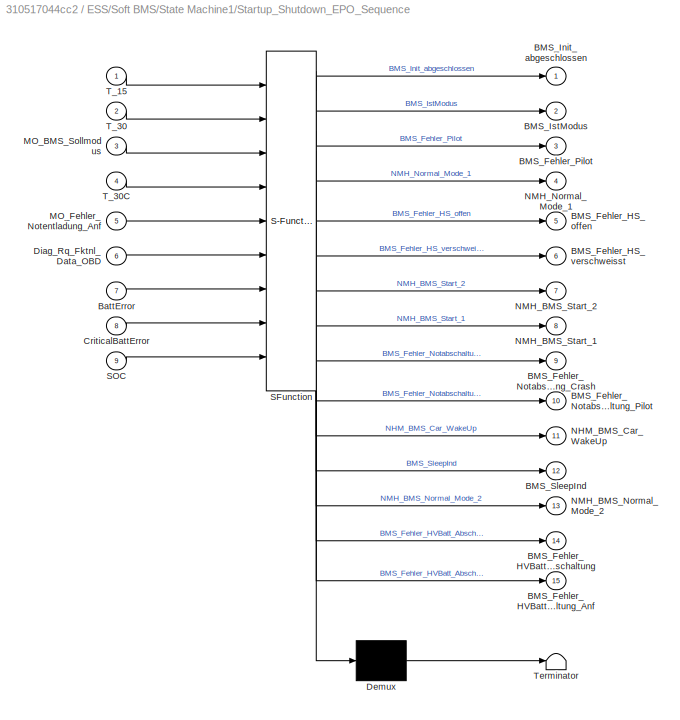
BLOCK [SubSystem] ESS/Soft BMS/State Machine1/Startup_Shutdown_EPO_Sequence
  ErrorFcn = Stateflow.Translate.translate
  PermitHierarchicalResolution = ExplicitOnly
  Ports = [9, 15]
  RequestExecContextInheritance = off
  SFBlockType = Chart
  TreatAsAtomicUnit = on
  Variant = off
BLOCK [Demux] ESS/Soft BMS/State Machine1/Startup_Shutdown_EPO_Sequence/ Demux 
  Outputs = 1
  Ports = [1, 1]
BLOCK [S-Function] ESS/Soft BMS/State Machine1/Startup_Shutdown_EPO_Sequence/ SFunction 
  EnableBusSupport = off
  FunctionName = sf_sfun
  Parameters = tloop
  PortCounts = [9 16]
  Ports = [9, 16]
  SFcnIsStateOwnerBlock = off
  SFunctionDeploymentMode = off
  Tag = Stateflow S-Function lib_HVESS 12
BLOCK [Terminator] ESS/Soft BMS/State Machine1/Startup_Shutdown_EPO_Sequence/ Terminator 
BLOCK [Outport] ESS/Soft BMS/State Machine1/Startup_Shutdown_EPO_Sequence/BMS_Fehler_HS_offen
  IconDisplay = Port number
  Port = 5
BLOCK [Outport] ESS/Soft BMS/State Machine1/Startup_Shutdown_EPO_Sequence/BMS_Fehler_HS_verschweisst
  IconDisplay = Port number
  Port = 6
BLOCK [Outport] ESS/Soft BMS/State Machine1/Startup_Shutdown_EPO_Sequence/BMS_Fehler_HVBatt_Abschaltung
  IconDisplay = Port number
  Port = 14
BLOCK [Outport] ESS/Soft BMS/State Machine1/Startup_Shutdown_EPO_Sequence/BMS_Fehler_HVBatt_Abschaltung_Anf
  IconDisplay = Port number
  Port = 15
BLOCK [Outport] ESS/Soft BMS/State Machine1/Startup_Shutdown_EPO_Sequence/BMS_Fehler_Notabschaltung_Crash
  IconDisplay = Port number
  Port = 9
BLOCK [Outport] ESS/Soft BMS/State Machine1/Startup_Shutdown_EPO_Sequence/BMS_Fehler_Notabschaltung_Pilot
  IconDisplay = Port number
  Port = 10
BLOCK [Outport] ESS/Soft BMS/State Machine1/Startup_Shutdown_EPO_Sequence/BMS_Fehler_Pilot
  IconDisplay = Port number
  Port = 3
BLOCK [Outport] ESS/Soft BMS/State Machine1/Startup_Shutdown_EPO_Sequence/BMS_Init_abgeschlossen
  IconDisplay = Port number
BLOCK [Outport] ESS/Soft BMS/State Machine1/Startup_Shutdown_EPO_Sequence/BMS_IstModus
  IconDisplay = Port number
  Port = 2
BLOCK [Outport] ESS/Soft BMS/State Machine1/Startup_Shutdown_EPO_Sequence/BMS_SleepInd
  IconDisplay = Port number
  Port = 12
BLOCK [Inport] ESS/Soft BMS/State Machine1/Startup_Shutdown_EPO_Sequence/BattError
  IconDisplay = Port number
  Port = 7
BLOCK [Inport] ESS/Soft BMS/State Machine1/Startup_Shutdown_EPO_Sequence/CriticalBattError
  IconDisplay = Port number
  Port = 8
BLOCK [Inport] ESS/Soft BMS/State Machine1/Startup_Shutdown_EPO_Sequence/Diag_Rq_Fktnl_Data_OBD
  IconDisplay = Port number
  Port = 6
BLOCK [Inport] ESS/Soft BMS/State Machine1/Startup_Shutdown_EPO_Sequence/MO_BMS_Sollmodus
  IconDisplay = Port number
  Port = 3
BLOCK [Inport] ESS/Soft BMS/State Machine1/Startup_Shutdown_EPO_Sequence/MO_Fehler_Notentladung_Anf
  IconDisplay = Port number
  Port = 5
BLOCK [Outport] ESS/Soft BMS/State Machine1/Startup_Shutdown_EPO_Sequence/NHM_BMS_Car_WakeUp
  IconDisplay = Port number
  Port = 11
BLOCK [Outport] ESS/Soft BMS/State Machine1/Startup_Shutdown_EPO_Sequence/NMH_BMS_Normal_Mode_2
  IconDisplay = Port number
  Port = 13
BLOCK [Outport] ESS/Soft BMS/State Machine1/Startup_Shutdown_EPO_Sequence/NMH_BMS_Start_1
  IconDisplay = Port number
  Port = 8
BLOCK [Outport] ESS/Soft BMS/State Machine1/Startup_Shutdown_EPO_Sequence/NMH_BMS_Start_2
  IconDisplay = Port number
  Port = 7
BLOCK [Outport] ESS/Soft BMS/State Machine1/Startup_Shutdown_EPO_Sequence/NMH_Normal_Mode_1
  IconDisplay = Port number
  Port = 4
BLOCK [Inport] ESS/Soft BMS/State Machine1/Startup_Shutdown_EPO_Sequence/SOC
  IconDisplay = Port number
  Port = 9
BLOCK [Inport] ESS/Soft BMS/State Machine1/Startup_Shutdown_EPO_Sequence/T_15
  IconDisplay = Port number
BLOCK [Inport] ESS/Soft BMS/State Machine1/Startup_Shutdown_EPO_Sequence/T_30
  IconDisplay = Port number
  Port = 2
BLOCK [Inport] ESS/Soft BMS/State Machine1/Startup_Shutdown_EPO_Sequence/T_30C
  IconDisplay = Port number
  Port = 4
BLOCK [Terminator] ESS/Soft BMS/State Machine1/Terminator2
BLOCK [Terminator] ESS/Soft BMS/State Machine1/Terminator3
BLOCK [ToWorkspace] ESS/Soft BMS/State Machine1/To Workspace1
  Decimation = WORKSPACE_DECIMATION
  MaxDataPoints = inf
  Ports = [1]
  SampleTime = -1
  VariableName = BMS_Fehler_Pilot
BLOCK [ToWorkspace] ESS/Soft BMS/State Machine1/To Workspace10
  Decimation = WORKSPACE_DECIMATION
  MaxDataPoints = inf
  Ports = [1]
  SampleTime = -1
  VariableName = BMS_IstModus
BLOCK [ToWorkspace] ESS/Soft BMS/State Machine1/To Workspace14
  Decimation = WORKSPACE_DECIMATION
  MaxDataPoints = inf
  Ports = [1]
  SampleTime = -1
  VariableName = NMH_BMS_Normal_Mode_2
BLOCK [ToWorkspace] ESS/Soft BMS/State Machine1/To Workspace15
  Decimation = WORKSPACE_DECIMATION
  MaxDataPoints = inf
  Ports = [1]
  SampleTime = -1
  VariableName = NMH_BMS_Start_1
BLOCK [ToWorkspace] ESS/Soft BMS/State Machine1/To Workspace16
  Decimation = WORKSPACE_DECIMATION
  MaxDataPoints = inf
  Ports = [1]
  SampleTime = -1
  VariableName = NMH_BMS_Car_WakeUp
BLOCK [ToWorkspace] ESS/Soft BMS/State Machine1/To Workspace2
  Decimation = WORKSPACE_DECIMATION
  MaxDataPoints = inf
  Ports = [1]
  SampleTime = -1
  VariableName = BMS_Fehler_Notabschaltung_Crash
BLOCK [ToWorkspace] ESS/Soft BMS/State Machine1/To Workspace3
  Decimation = WORKSPACE_DECIMATION
  MaxDataPoints = inf
  Ports = [1]
  SampleTime = -1
  VariableName = BMS_SleepInd
BLOCK [ToWorkspace] ESS/Soft BMS/State Machine1/To Workspace4
  Decimation = WORKSPACE_DECIMATION
  MaxDataPoints = inf
  Ports = [1]
  SampleTime = -1
  VariableName = BMS_Fehler_verschweisst
BLOCK [ToWorkspace] ESS/Soft BMS/State Machine1/To Workspace5
  Decimation = WORKSPACE_DECIMATION
  MaxDataPoints = inf
  Ports = [1]
  SampleTime = -1
  VariableName = NMH_BMS_Normal_Mode_1
BLOCK [ToWorkspace] ESS/Soft BMS/State Machine1/To Workspace6
  Decimation = WORKSPACE_DECIMATION
  MaxDataPoints = inf
  Ports = [1]
  SampleTime = -1
  VariableName = BMS_Fehler_HS_offen
BLOCK [ToWorkspace] ESS/Soft BMS/State Machine1/To Workspace8
  Decimation = WORKSPACE_DECIMATION
  MaxDataPoints = inf
  Ports = [1]
  SampleTime = -1
  VariableName = NMH_BMS_Start_2
BLOCK [ToWorkspace] ESS/Soft BMS/State Machine1/To Workspace9
  Decimation = WORKSPACE_DECIMATION
  MaxDataPoints = inf
  Ports = [1]
  SampleTime = -1
  VariableName = BMS_Fehler_Notabschaltung_Pilot
BLOCK [SubSystem] ESS/Soft BMS/Temperature Management
  Ports = [1]
  RequestExecContextInheritance = off
  Variant = off
BLOCK [Goto] ESS/Soft BMS/Temperature Management/ 
  GotoTag = BMS_Temperierung_Anf
  TagVisibility = global
BLOCK [Goto] ESS/Soft BMS/Temperature Management/ 1
  GotoTag = BMS_HYB_Kuehlung_Anf
  TagVisibility = global
BLOCK [Sum] ESS/Soft BMS/Temperature Management/Add2
  InputSameDT = off
  Inputs = +-
  OutDataTypeStr = Inherit: Inherit via internal rule
  Ports = [2, 1]
  SaturateOnIntegerOverflow = off
BLOCK [Constant] ESS/Soft BMS/Temperature Management/Constant
BLOCK [Constant] ESS/Soft BMS/Temperature Management/Constant1
  Value = 3
BLOCK [Constant] ESS/Soft BMS/Temperature Management/Constant2
  Commented = on
  Value = BMS_Notfallkuehlung
BLOCK [Constant] ESS/Soft BMS/Temperature Management/Constant3
BLOCK [Goto] ESS/Soft BMS/Temperature Management/Goto
  GotoTag = BMS_Notfallkuehlung
  TagVisibility = global
BLOCK [Goto] ESS/Soft BMS/Temperature Management/Goto9
  GotoTag = BMS_Temperatur
  TagVisibility = global
BLOCK [Constant] ESS/Soft BMS/Temperature Management/K
  Value = 273.15
BLOCK [Switch] ESS/Soft BMS/Temperature Management/Switch
  InputSameDT = off
  SaturateOnIntegerOverflow = off
BLOCK [Inport] ESS/Soft BMS/Temperature Management/ess_temp
  IconDisplay = Port number
BLOCK [Terminator] ESS/Soft BMS/Terminator
BLOCK [Inport] ESS/current
  IconDisplay = Port number
BLOCK [Outport] ESS/voltage
  IconDisplay = Port number
ANNOTATION ESS: BMS_to_Actuators
ANNOTATION ESS/ESS: $Author: eo1000 $ $Rev: 431 $ $Date: 2016-09-24 14:28:33 -0500 (Sat, 24 Sep 2016) $
ANNOTATION ESS/ESS: Discharge is Negative!
ANNOTATION ESS/ESS: Sensors
ANNOTATION ESS/ESS/Bosch_Li_Cell: References: Evaluation of Lithium-Ion Battery Equivalent Circuit Models for State of Charge Estimation by an Experimental Approach- by Hongwen He *, Rui Xiong and Jinxin Fan Electrochemical and Thermal Modeling of lithium-ion cells for use in HEV or EV applications - Ralf Benger, et al.
ANNOTATION ESS/ESS/Bosch_Li_Cell: SOC Calculation
ANNOTATION ESS/ESS/Bosch_Li_Cell: Thermal Model
ANNOTATION ESS/ESS/Bosch_Li_Cell: Voltage Calculation
NET ESS/ESS/0 current:1 -> ESS/ESS/Bus Creator1:4, ESS/ESS/Switch1:1, ESS/ESS/tloop2:1
NET ESS/ESS/Bosch_Li_Cell/1-Q//C:1 -> ESS/ESS/Bosch_Li_Cell/Goto2:1, ESS/ESS/Bosch_Li_Cell/Memory1:1, ESS/ESS/Bosch_Li_Cell/SOC:1
LINE ESS/ESS/Bosch_Li_Cell/Abs:1 -> ESS/ESS/Bosch_Li_Cell/Gain1:1
NET ESS/ESS/Bosch_Li_Cell/C_1:1 -> ESS/ESS/Bosch_Li_Cell/I//C:2, ESS/ESS/Bosch_Li_Cell/RC:2
LINE ESS/ESS/Bosch_Li_Cell/Chg:1 -> ESS/ESS/Bosch_Li_Cell/Q//C:1
NET ESS/ESS/Bosch_Li_Cell/Clock:1 -> ESS/ESS/Bosch_Li_Cell/Memory:1, ESS/ESS/Bosch_Li_Cell/dt:1
LINE ESS/ESS/Bosch_Li_Cell/From1:1 -> ESS/ESS/Bosch_Li_Cell/Memory2:1
LINE ESS/ESS/Bosch_Li_Cell/From2:1 -> ESS/ESS/Bosch_Li_Cell/IR:1
LINE ESS/ESS/Bosch_Li_Cell/From3:1 -> ESS/ESS/Bosch_Li_Cell/P:2
NET ESS/ESS/Bosch_Li_Cell/From4:1 -> ESS/ESS/Bosch_Li_Cell/Q1:2, ESS/ESS/Bosch_Li_Cell/Subsystem:2, ESS/ESS/Bosch_Li_Cell/Switch:2
NET ESS/ESS/Bosch_Li_Cell/From5:1 -> ESS/ESS/Bosch_Li_Cell/R_0 Lookup Table:1, ESS/ESS/Bosch_Li_Cell/R_1 Lookup Table1:1, ESS/ESS/Bosch_Li_Cell/Voc Lookup Table:1
LINE ESS/ESS/Bosch_Li_Cell/From:1 -> ESS/ESS/Bosch_Li_Cell/Rate Transition1:1
LINE ESS/ESS/Bosch_Li_Cell/Gain1:1 -> ESS/ESS/Bosch_Li_Cell/Rate Transition:1
LINE ESS/ESS/Bosch_Li_Cell/Gain2:1 -> ESS/ESS/Bosch_Li_Cell/Switch:3
LINE ESS/ESS/Bosch_Li_Cell/Gain:1 -> ESS/ESS/Bosch_Li_Cell/Goto1:1
LINE ESS/ESS/Bosch_Li_Cell/I//C:1 -> ESS/ESS/Bosch_Li_Cell/Sum:2
LINE ESS/ESS/Bosch_Li_Cell/I:1 -> ESS/ESS/Bosch_Li_Cell/Gain:1
LINE ESS/ESS/Bosch_Li_Cell/IR:1 -> ESS/ESS/Bosch_Li_Cell/Sum1:2
LINE ESS/ESS/Bosch_Li_Cell/Idt:1 -> ESS/ESS/Bosch_Li_Cell/Q//C:2
LINE ESS/ESS/Bosch_Li_Cell/Iloss:1 -> ESS/ESS/Bosch_Li_Cell/Subsystem:1
LINE ESS/ESS/Bosch_Li_Cell/Memory1:1 -> ESS/ESS/Bosch_Li_Cell/1-Q//C:1
LINE ESS/ESS/Bosch_Li_Cell/Memory2:1 -> ESS/ESS/Bosch_Li_Cell/I//C:1
NET ESS/ESS/Bosch_Li_Cell/Memory4:1 -> ESS/ESS/Bosch_Li_Cell/R_0 Lookup Table:2, ESS/ESS/Bosch_Li_Cell/R_1 Lookup Table1:2
LINE ESS/ESS/Bosch_Li_Cell/Memory:1 -> ESS/ESS/Bosch_Li_Cell/dt:2
NET ESS/ESS/Bosch_Li_Cell/P:1 -> ESS/ESS/Bosch_Li_Cell/Abs:1, ESS/ESS/Bosch_Li_Cell/Iloss:1
NET ESS/ESS/Bosch_Li_Cell/PS-Simulink Converter:1 -> ESS/ESS/Bosch_Li_Cell/Goto:1, ESS/ESS/Bosch_Li_Cell/T:1
LINE ESS/ESS/Bosch_Li_Cell/Q//C:1 -> ESS/ESS/Bosch_Li_Cell/1-Q//C:2
LINE ESS/ESS/Bosch_Li_Cell/Q1:1 -> ESS/ESS/Bosch_Li_Cell/Idt:1
LINE ESS/ESS/Bosch_Li_Cell/RC:1 -> ESS/ESS/Bosch_Li_Cell/Vth//RC:2
LINE ESS/ESS/Bosch_Li_Cell/R_0 Lookup Table:1 -> ESS/ESS/Bosch_Li_Cell/IR:2
LINE ESS/ESS/Bosch_Li_Cell/R_1 Lookup Table1:1 -> ESS/ESS/Bosch_Li_Cell/RC:1
LINE ESS/ESS/Bosch_Li_Cell/Rate Transition1:1 -> ESS/ESS/Bosch_Li_Cell/Memory4:1
LINE ESS/ESS/Bosch_Li_Cell/Rate Transition:1 -> ESS/ESS/Bosch_Li_Cell/Simulink-PS Converter1:1
LINE ESS/ESS/Bosch_Li_Cell/Saturation:1 -> ESS/ESS/Bosch_Li_Cell/V:1
NET ESS/ESS/Bosch_Li_Cell/Subsystem/Gain3:1 -> ESS/ESS/Bosch_Li_Cell/Subsystem/Relational Operator:2, ESS/ESS/Bosch_Li_Cell/Subsystem/Switch:3
LINE ESS/ESS/Bosch_Li_Cell/Subsystem/In1:1 -> ESS/ESS/Bosch_Li_Cell/Subsystem/Memory:1
LINE ESS/ESS/Bosch_Li_Cell/Subsystem/In2:1 -> ESS/ESS/Bosch_Li_Cell/Subsystem/Gain3:1
NET ESS/ESS/Bosch_Li_Cell/Subsystem/Memory:1 -> ESS/ESS/Bosch_Li_Cell/Subsystem/Relational Operator:1, ESS/ESS/Bosch_Li_Cell/Subsystem/Switch:1
LINE ESS/ESS/Bosch_Li_Cell/Subsystem/Relational Operator:1 -> ESS/ESS/Bosch_Li_Cell/Subsystem/Switch:2
LINE ESS/ESS/Bosch_Li_Cell/Subsystem/Switch:1 -> ESS/ESS/Bosch_Li_Cell/Subsystem/Out1:1
NET ESS/ESS/Bosch_Li_Cell/Subsystem:1 -> ESS/ESS/Bosch_Li_Cell/Gain2:1, ESS/ESS/Bosch_Li_Cell/Switch:1
NET ESS/ESS/Bosch_Li_Cell/Sum1:1 -> ESS/ESS/Bosch_Li_Cell/Saturation:1, ESS/ESS/Bosch_Li_Cell/Sum2:2
LINE ESS/ESS/Bosch_Li_Cell/Sum2:1 -> ESS/ESS/Bosch_Li_Cell/P:1
NET ESS/ESS/Bosch_Li_Cell/Sum:1 -> ESS/ESS/Bosch_Li_Cell/Sum1:3, ESS/ESS/Bosch_Li_Cell/Vth:1
LINE ESS/ESS/Bosch_Li_Cell/Switch:1 -> ESS/ESS/Bosch_Li_Cell/Q1:1
NET ESS/ESS/Bosch_Li_Cell/Voc Lookup Table:1 -> ESS/ESS/Bosch_Li_Cell/Iloss:2, ESS/ESS/Bosch_Li_Cell/Sum1:1, ESS/ESS/Bosch_Li_Cell/Sum2:1
LINE ESS/ESS/Bosch_Li_Cell/Vth//RC:1 -> ESS/ESS/Bosch_Li_Cell/Sum:1
LINE ESS/ESS/Bosch_Li_Cell/Vth:1 -> ESS/ESS/Bosch_Li_Cell/Vth//RC:1
LINE ESS/ESS/Bosch_Li_Cell/dt:1 -> ESS/ESS/Bosch_Li_Cell/Idt:2
NET ESS/ESS/Bosch_Li_Cell:1 -> ESS/ESS/Bus Creator1:3, ESS/ESS/Gain1:1
NET ESS/ESS/Bosch_Li_Cell:2 -> ESS/ESS/Goto:1, ESS/ESS/To Workspace1:1
LINE ESS/ESS/Bosch_Li_Cell:3 -> ESS/ESS/Rate Transition:1
LINE ESS/ESS/Bus Creator1:1 -> ESS/ESS/out:1
LINE ESS/ESS/Constant1:1 -> ESS/ESS/Switch3:1
LINE ESS/ESS/Constant2:1 -> ESS/ESS/Switch1:3
LINE ESS/ESS/Constant3:1 -> ESS/ESS/Switch2:3
LINE ESS/ESS/Constant4:1 -> ESS/ESS/Switch4:1
LINE ESS/ESS/Cooling_Loop/Constant:1 -> ESS/ESS/Cooling_Loop/Simulink-PS Converter:1
LINE ESS/ESS/Cooling_Loop1/ACcompRPM:1 -> ESS/ESS/Cooling_Loop1/Divide8:2
LINE ESS/ESS/Cooling_Loop1/Add2:1 -> ESS/ESS/Cooling_Loop1/Add4:1
LINE ESS/ESS/Cooling_Loop1/Add4:1 -> ESS/ESS/Cooling_Loop1/Divide4:1
LINE ESS/ESS/Cooling_Loop1/Add:1 -> ESS/ESS/Cooling_Loop1/Rate Transition1:1
LINE ESS/ESS/Cooling_Loop1/Constant3:1 -> ESS/ESS/Cooling_Loop1/Switch:3
LINE ESS/ESS/Cooling_Loop1/CoolaSpecHeat:1 -> ESS/ESS/Cooling_Loop1/Divide6:1
LINE ESS/ESS/Cooling_Loop1/Divide4:1 -> ESS/ESS/Cooling_Loop1/Add:2
LINE ESS/ESS/Cooling_Loop1/Divide5:1 -> ESS/ESS/Cooling_Loop1/tloop:1
LINE ESS/ESS/Cooling_Loop1/Divide6:1 -> ESS/ESS/Cooling_Loop1/Divide4:2
LINE ESS/ESS/Cooling_Loop1/Divide8:1 -> ESS/ESS/Cooling_Loop1/Gain:1
LINE ESS/ESS/Cooling_Loop1/From1:1 -> ESS/ESS/Cooling_Loop1/Switch:1
LINE ESS/ESS/Cooling_Loop1/From2:1 -> ESS/ESS/Cooling_Loop1/Add2:1
LINE ESS/ESS/Cooling_Loop1/From3:1 -> ESS/ESS/Cooling_Loop1/Divide5:1
LINE ESS/ESS/Cooling_Loop1/From:1 -> ESS/ESS/Cooling_Loop1/Switch:2
LINE ESS/ESS/Cooling_Loop1/Gain1:1 -> ESS/ESS/Cooling_Loop1/Add:1
LINE ESS/ESS/Cooling_Loop1/Gain:1 -> ESS/ESS/Cooling_Loop1/Gain1:1
LINE ESS/ESS/Cooling_Loop1/K:1 -> ESS/ESS/Cooling_Loop1/Add2:2
LINE ESS/ESS/Cooling_Loop1/PS-Simulink Converter:1 -> ESS/ESS/Cooling_Loop1/Scope:1
LINE ESS/ESS/Cooling_Loop1/PumpFlowRate:1 -> ESS/ESS/Cooling_Loop1/h:1
LINE ESS/ESS/Cooling_Loop1/Rate Transition1:1 -> ESS/ESS/Cooling_Loop1/Simulink-PS Converter3:1
LINE ESS/ESS/Cooling_Loop1/Sensor/PS-Simulink Converter:1 -> ESS/ESS/Cooling_Loop1/Sensor/Scope:1
LINE ESS/ESS/Cooling_Loop1/Switch:1 -> ESS/ESS/Cooling_Loop1/Divide8:1
LINE ESS/ESS/Cooling_Loop1/coolant_temp:1 -> ESS/ESS/Cooling_Loop1/Add4:2
LINE ESS/ESS/Cooling_Loop1/h:1 -> ESS/ESS/Cooling_Loop1/Divide5:2
LINE ESS/ESS/Cooling_Loop1/tloop:1 -> ESS/ESS/Cooling_Loop1/Divide6:2
LINE ESS/ESS/Crr :1 -> ESS/ESS/0 current:1
LINE ESS/ESS/Data Type Conversion:1 -> ESS/ESS/To Workspace6:1
LINE ESS/ESS/Fault_Insertion/From:1 -> ESS/ESS/Fault_Insertion/Switch:2
LINE ESS/ESS/Fault_Insertion/Gain:1 -> ESS/ESS/Fault_Insertion/Switch:1
NET ESS/ESS/Fault_Insertion/In1:1 -> ESS/ESS/Fault_Insertion/Gain:1, ESS/ESS/Fault_Insertion/Switch:3
LINE ESS/ESS/Fault_Insertion/Switch:1 -> ESS/ESS/Fault_Insertion/Out1:1
LINE ESS/ESS/Fault_Insertion:1 -> ESS/ESS/Bus Creator1:2
NET ESS/ESS/From1:1 -> ESS/ESS/Switch4:2, ESS/ESS/Switch4:3
NET ESS/ESS/From4:1 -> ESS/ESS/Bus Creator1:5, ESS/ESS/To Workspace2:1
NET ESS/ESS/From6:1 -> ESS/ESS/Data Type Conversion:1, ESS/ESS/Switch3:2, ESS/ESS/Switch3:3
LINE ESS/ESS/Gain1:1 -> ESS/ESS/Switch2:1
LINE ESS/ESS/In :1 -> ESS/ESS/Goto6:1
LINE ESS/ESS/Rate Transition:1 -> ESS/ESS/Fault_Insertion:1
LINE ESS/ESS/Switch1:1 -> ESS/ESS/To Workspace4:1
NET ESS/ESS/Switch2:1 -> ESS/ESS/Bus Creator1:1, ESS/ESS/To Workspace5:1, ESS/ESS/Voltage:1
LINE ESS/ESS/Switch3:1 -> ESS/ESS/Switch1:2
LINE ESS/ESS/Switch4:1 -> ESS/ESS/Switch2:2
LINE ESS/ESS/tloop2:1 -> ESS/ESS/Bosch_Li_Cell:1
LINE ESS/ESS:1 -> ESS/Soft BMS:2
LINE ESS/ESS:2 -> ESS/voltage:1
LINE ESS/Inputs/Bus Creator1:1 -> ESS/Inputs/Inputs:1
LINE ESS/Inputs/CAN_fromHCU/Bus Creator:1 -> ESS/Inputs/CAN_fromHCU/Outputs:1
LINE ESS/Inputs/CAN_fromHCU/From1:1 -> ESS/Inputs/CAN_fromHCU/Bus Creator:2
LINE ESS/Inputs/CAN_fromHCU/From2:1 -> ESS/Inputs/CAN_fromHCU/Bus Creator:1
LINE ESS/Inputs/CAN_fromHCU:1 -> ESS/Inputs/Bus Creator1:1
LINE ESS/Inputs/Digital_fromHCU/From1:1 -> ESS/Inputs/Digital_fromHCU/Outputs:1
LINE ESS/Inputs/Digital_fromHCU:1 -> ESS/Inputs/Bus Creator1:2
LINE ESS/Inputs:1 -> ESS/Soft BMS:1
LINE ESS/Outputs/Outputs:1 -> ESS/Outputs/Goto2:1
LINE ESS/Soft BMS/BMS_08 1/Bus Creator8:1 -> ESS/Soft BMS/BMS_08 1/BMS_08:1
LINE ESS/Soft BMS/BMS_08 1/From1:1 -> ESS/Soft BMS/BMS_08 1/Bus Creator8:2
LINE ESS/Soft BMS/BMS_08 1/From:1 -> ESS/Soft BMS/BMS_08 1/Bus Creator8:1
LINE ESS/Soft BMS/BMS_08 1:1 -> ESS/Soft BMS/Bus Creator5:4
LINE ESS/Soft BMS/BMS_1/Bus Creator8:1 -> ESS/Soft BMS/BMS_1/BMS_06:1
LINE ESS/Soft BMS/BMS_1/Constant2:1 -> ESS/Soft BMS/BMS_1/Bus Creator8:1
LINE ESS/Soft BMS/BMS_1:1 -> ESS/Soft BMS/Bus Creator5:2
LINE ESS/Soft BMS/BMS_2/Bus Creator8:1 -> ESS/Soft BMS/BMS_2/BMS_07:1
LINE ESS/Soft BMS/BMS_2/From11:1 -> ESS/Soft BMS/BMS_2/Bus Creator8:1
LINE ESS/Soft BMS/BMS_2:1 -> ESS/Soft BMS/Bus Creator5:3
LINE ESS/Soft BMS/BMS_3/Bus Creator8:1 -> ESS/Soft BMS/BMS_3/ISO_Hybrid_01_Resp:1
LINE ESS/Soft BMS/BMS_3/Constant1:1 -> ESS/Soft BMS/BMS_3/Bus Creator8:3
LINE ESS/Soft BMS/BMS_3/Constant:1 -> ESS/Soft BMS/BMS_3/Bus Creator8:2
LINE ESS/Soft BMS/BMS_3/Data Type Conversion:1 -> ESS/Soft BMS/BMS_3/Bus Creator8:1
LINE ESS/Soft BMS/BMS_3/From1:1 -> ESS/Soft BMS/BMS_3/Data Type Conversion:1
LINE ESS/Soft BMS/BMS_3:1 -> ESS/Soft BMS/Bus Creator5:1
LINE ESS/Soft BMS/BMS_HYB_1/BMS_HYB_02_BZ/Constant1:1 -> ESS/Soft BMS/BMS_HYB_1/BMS_HYB_02_BZ/Goto:1
LINE ESS/Soft BMS/BMS_HYB_1/BMS_HYB_02_BZ/Constant:1 -> ESS/Soft BMS/BMS_HYB_1/BMS_HYB_02_BZ/Switch:1
LINE ESS/Soft BMS/BMS_HYB_1/BMS_HYB_02_BZ/From14:1 -> ESS/Soft BMS/BMS_HYB_1/BMS_HYB_02_BZ/Switch:2
LINE ESS/Soft BMS/BMS_HYB_1/BMS_HYB_02_BZ/Rolling Alive Counter1:1 -> ESS/Soft BMS/BMS_HYB_1/BMS_HYB_02_BZ/Switch:3
LINE ESS/Soft BMS/BMS_HYB_1/BMS_HYB_02_BZ/Switch:1 -> ESS/Soft BMS/BMS_HYB_1/BMS_HYB_02_BZ/Out1:1
LINE ESS/Soft BMS/BMS_HYB_1/BMS_HYB_02_BZ:1 -> ESS/Soft BMS/BMS_HYB_1/Bus Creator3:18
LINE ESS/Soft BMS/BMS_HYB_1/Bus Creator3:1 -> ESS/Soft BMS/BMS_HYB_1/BMS_HYB_02:1
LINE ESS/Soft BMS/BMS_HYB_1/Clock3:1 -> ESS/Soft BMS/BMS_HYB_1/Speed1:1
LINE ESS/Soft BMS/BMS_HYB_1/Constant12:1 -> ESS/Soft BMS/BMS_HYB_1/Bus Creator3:14
LINE ESS/Soft BMS/BMS_HYB_1/Constant7:1 -> ESS/Soft BMS/BMS_HYB_1/Bus Creator3:7
LINE ESS/Soft BMS/BMS_HYB_1/Constant8:1 -> ESS/Soft BMS/BMS_HYB_1/Bus Creator3:8
LINE ESS/Soft BMS/BMS_HYB_1/Data Type Conversion:1 -> ESS/Soft BMS/BMS_HYB_1/Bus Creator3:1
LINE ESS/Soft BMS/BMS_HYB_1/From10:1 -> ESS/Soft BMS/BMS_HYB_1/Bus Creator3:2
LINE ESS/Soft BMS/BMS_HYB_1/From11:1 -> ESS/Soft BMS/BMS_HYB_1/Bus Creator3:3
LINE ESS/Soft BMS/BMS_HYB_1/From12:1 -> ESS/Soft BMS/BMS_HYB_1/Bus Creator3:4
LINE ESS/Soft BMS/BMS_HYB_1/From13:1 -> ESS/Soft BMS/BMS_HYB_1/Bus Creator3:6
LINE ESS/Soft BMS/BMS_HYB_1/From1:1 -> ESS/Soft BMS/BMS_HYB_1/Bus Creator3:13
LINE ESS/Soft BMS/BMS_HYB_1/From2:1 -> ESS/Soft BMS/BMS_HYB_1/Bus Creator3:9
LINE ESS/Soft BMS/BMS_HYB_1/From3:1 -> ESS/Soft BMS/BMS_HYB_1/Data Type Conversion:1
LINE ESS/Soft BMS/BMS_HYB_1/From4:1 -> ESS/Soft BMS/BMS_HYB_1/Bus Creator3:15
LINE ESS/Soft BMS/BMS_HYB_1/From5:1 -> ESS/Soft BMS/BMS_HYB_1/Bus Creator3:11
LINE ESS/Soft BMS/BMS_HYB_1/From6:1 -> ESS/Soft BMS/BMS_HYB_1/Bus Creator3:12
LINE ESS/Soft BMS/BMS_HYB_1/From7:1 -> ESS/Soft BMS/BMS_HYB_1/Bus Creator3:16
LINE ESS/Soft BMS/BMS_HYB_1/From8:1 -> ESS/Soft BMS/BMS_HYB_1/Bus Creator3:5
LINE ESS/Soft BMS/BMS_HYB_1/From9:1 -> ESS/Soft BMS/BMS_HYB_1/Bus Creator3:17
LINE ESS/Soft BMS/BMS_HYB_1/From:1 -> ESS/Soft BMS/BMS_HYB_1/Bus Creator3:10
LINE ESS/Soft BMS/BMS_HYB_1/Ground1:1 -> ESS/Soft BMS/BMS_HYB_1/Bus Creator3:20
LINE ESS/Soft BMS/BMS_HYB_1/Ground:1 -> ESS/Soft BMS/BMS_HYB_1/Bus Creator3:19
LINE ESS/Soft BMS/BMS_HYB_1:1 -> ESS/Soft BMS/Bus Creator2:1
LINE ESS/Soft BMS/BMS_HYB_2/Bus Creator3:1 -> ESS/Soft BMS/BMS_HYB_2/BMS_HYB_03:1
LINE ESS/Soft BMS/BMS_HYB_2/Data Type Conversion:1 -> ESS/Soft BMS/BMS_HYB_2/Bus Creator3:1
LINE ESS/Soft BMS/BMS_HYB_2/From:1 -> ESS/Soft BMS/BMS_HYB_2/Gain:1
LINE ESS/Soft BMS/BMS_HYB_2/Gain:1 -> ESS/Soft BMS/BMS_HYB_2/Data Type Conversion:1
LINE ESS/Soft BMS/BMS_HYB_2:1 -> ESS/Soft BMS/Bus Creator2:2
LINE ESS/Soft BMS/BMS_HYB_3/Bus Creator6:1 -> ESS/Soft BMS/BMS_HYB_3/BMS_HYB_04:1
LINE ESS/Soft BMS/BMS_HYB_3/Constant2:1 -> ESS/Soft BMS/BMS_HYB_3/Bus Creator6:2
LINE ESS/Soft BMS/BMS_HYB_3/Constant:1 -> ESS/Soft BMS/BMS_HYB_3/Bus Creator6:1
LINE ESS/Soft BMS/BMS_HYB_3/From:1 -> ESS/Soft BMS/BMS_HYB_3/Bus Creator6:3
LINE ESS/Soft BMS/BMS_HYB_3:1 -> ESS/Soft BMS/Bus Creator2:3
LINE ESS/Soft BMS/BMS_HYB_4/Bus Creator6:1 -> ESS/Soft BMS/BMS_HYB_4/BMS_HYB_06:1
LINE ESS/Soft BMS/BMS_HYB_4/Constant1:1 -> ESS/Soft BMS/BMS_HYB_4/Bus Creator6:2
LINE ESS/Soft BMS/BMS_HYB_4/Constant2:1 -> ESS/Soft BMS/BMS_HYB_4/Bus Creator6:3
LINE ESS/Soft BMS/BMS_HYB_4/Constant3:1 -> ESS/Soft BMS/BMS_HYB_4/Bus Creator6:1
LINE ESS/Soft BMS/BMS_HYB_4/Constant5:1 -> ESS/Soft BMS/BMS_HYB_4/Bus Creator6:5
LINE ESS/Soft BMS/BMS_HYB_4/From:1 -> ESS/Soft BMS/BMS_HYB_4/Bus Creator6:4
LINE ESS/Soft BMS/BMS_HYB_4:1 -> ESS/Soft BMS/Bus Creator2:4
LINE ESS/Soft BMS/BMS_HYB_5/Bus Creator6:1 -> ESS/Soft BMS/BMS_HYB_5/BMS_HYB_07:1
LINE ESS/Soft BMS/BMS_HYB_5/From:1 -> ESS/Soft BMS/BMS_HYB_5/Bus Creator6:1
LINE ESS/Soft BMS/BMS_HYB_5:1 -> ESS/Soft BMS/Bus Creator2:5
LINE ESS/Soft BMS/BMS_Hybrid_1/Bus Creator8:1 -> ESS/Soft BMS/BMS_Hybrid_1/BMS_Hybrid_01:1
LINE ESS/Soft BMS/BMS_Hybrid_1/From:1 -> ESS/Soft BMS/BMS_Hybrid_1/Bus Creator8:1
LINE ESS/Soft BMS/BMS_Hybrid_1:1 -> ESS/Soft BMS/Bus Creator5:5
LINE ESS/Soft BMS/Bus Creator2:1 -> ESS/Soft BMS/Bus Creator3:1
LINE ESS/Soft BMS/Bus Creator3:1 -> ESS/Soft BMS/CAN:1
LINE ESS/Soft BMS/Bus Creator4:1 -> ESS/Soft BMS/Terminator:1
LINE ESS/Soft BMS/Bus Creator5:1 -> ESS/Soft BMS/Bus Creator3:2
LINE ESS/Soft BMS/Bus Selector1:1 -> ESS/Soft BMS/Gain:1
LINE ESS/Soft BMS/Bus Selector1:2 -> ESS/Soft BMS/Gain1:1
LINE ESS/Soft BMS/Bus Selector1:3 -> ESS/Soft BMS/Gain2:1
LINE ESS/Soft BMS/Bus Selector1:4 -> ESS/Soft BMS/Gain3:1
LINE ESS/Soft BMS/Bus Selector1:5 -> ESS/Soft BMS/Goto8:1
LINE ESS/Soft BMS/Energy Consumption/Current:1 -> ESS/Soft BMS/Energy Consumption/Multiply:1
LINE ESS/Soft BMS/Energy Consumption/Divide by zero/Compare To Constant:1 -> ESS/Soft BMS/Energy Consumption/Divide by zero/Switch2:2
LINE ESS/Soft BMS/Energy Consumption/Divide by zero/Constant1:1 -> ESS/Soft BMS/Energy Consumption/Divide by zero/Switch2:1
NET ESS/Soft BMS/Energy Consumption/Divide by zero/In1:1 -> ESS/Soft BMS/Energy Consumption/Divide by zero/Compare To Constant:1, ESS/Soft BMS/Energy Consumption/Divide by zero/Switch2:3
LINE ESS/Soft BMS/Energy Consumption/Divide by zero/Switch2:1 -> ESS/Soft BMS/Energy Consumption/Divide by zero/Out1:1
LINE ESS/Soft BMS/Energy Consumption/Divide by zero:1 -> ESS/Soft BMS/Energy Consumption/Divide:2
NET ESS/Soft BMS/Energy Consumption/Divide:1 -> ESS/Soft BMS/Energy Consumption/To Workspace4:1, ESS/Soft BMS/Energy Consumption/Whpkm2:1
LINE ESS/Soft BMS/Energy Consumption/From:1 -> ESS/Soft BMS/Energy Consumption/Gain:1
LINE ESS/Soft BMS/Energy Consumption/Gain1:1 -> ESS/Soft BMS/Energy Consumption/To Workspace1:1
LINE ESS/Soft BMS/Energy Consumption/Gain:1 -> ESS/Soft BMS/Energy Consumption/Divide by zero:1
NET ESS/Soft BMS/Energy Consumption/Initial Current1:1 -> ESS/Soft BMS/Energy Consumption/Divide:1, ESS/Soft BMS/Energy Consumption/Gain1:1, ESS/Soft BMS/Energy Consumption/Sum5:2
NET ESS/Soft BMS/Energy Consumption/Multiply:1 -> ESS/Soft BMS/Energy Consumption/Goto:1, ESS/Soft BMS/Energy Consumption/To_WHr1:1
LINE ESS/Soft BMS/Energy Consumption/Sum5:1 -> ESS/Soft BMS/Energy Consumption/Initial Current1:1
LINE ESS/Soft BMS/Energy Consumption/To_WHr1:1 -> ESS/Soft BMS/Energy Consumption/Sum5:1
LINE ESS/Soft BMS/Energy Consumption/Voltage:1 -> ESS/Soft BMS/Energy Consumption/Multiply:2
LINE ESS/Soft BMS/From:1 -> ESS/Soft BMS/Scope:1
NET ESS/Soft BMS/Gain1:1 -> ESS/Soft BMS/Goto4:1, ESS/Soft BMS/NoiseAdd:1, ESS/Soft BMS/Temperature Management:1
LINE ESS/Soft BMS/Gain2:1 -> ESS/Soft BMS/Memory:1
LINE ESS/Soft BMS/Gain3:1 -> ESS/Soft BMS/Memory1:1
NET ESS/Soft BMS/Gain:1 -> ESS/Soft BMS/Goto2:1, ESS/Soft BMS/Limits:1
LINE ESS/Soft BMS/HV_Netz status/Constant3:1 -> ESS/Soft BMS/HV_Netz status/Switch:1
LINE ESS/Soft BMS/HV_Netz status/Constant4:1 -> ESS/Soft BMS/HV_Netz status/Switch:3
LINE ESS/Soft BMS/HV_Netz status/Constant5:1 -> ESS/Soft BMS/HV_Netz status/Switch1:3
LINE ESS/Soft BMS/HV_Netz status/Constant6:1 -> ESS/Soft BMS/HV_Netz status/Switch2:1
NET ESS/Soft BMS/HV_Netz status/From:1 -> ESS/Soft BMS/HV_Netz status/Switch1:2, ESS/Soft BMS/HV_Netz status/Switch2:2
NET ESS/Soft BMS/HV_Netz status/Memory1:1 -> ESS/Soft BMS/HV_Netz status/BMS_Spannung_Zwkr:1, ESS/Soft BMS/HV_Netz status/Switch:2
LINE ESS/Soft BMS/HV_Netz status/Memory:1 -> ESS/Soft BMS/HV_Netz status/Switch2:3
LINE ESS/Soft BMS/HV_Netz status/Switch1:1 -> ESS/Soft BMS/HV_Netz status/Memory:1
LINE ESS/Soft BMS/HV_Netz status/Switch2:1 -> ESS/Soft BMS/HV_Netz status/Memory1:1
LINE ESS/Soft BMS/HV_Netz status/Switch:1 -> ESS/Soft BMS/HV_Netz status/BMS_Gesamtst_Spgfreiheit:1
LINE ESS/Soft BMS/HV_Netz status/ess_vbat:1 -> ESS/Soft BMS/HV_Netz status/Switch1:1
LINE ESS/Soft BMS/HV_Netz status:1 -> ESS/Soft BMS/Goto10:1
LINE ESS/Soft BMS/HV_Netz status:2 -> ESS/Soft BMS/Goto9:1
LINE ESS/Soft BMS/Input1:1 -> ESS/Soft BMS/State Machine1:1
LINE ESS/Soft BMS/Input2:1 -> ESS/Soft BMS/Bus Selector1:1
LINE ESS/Soft BMS/Limits/Average Current/60 sec rolling average1/1 second:1 -> ESS/Soft BMS/Limits/Average Current/60 sec rolling average1/Sum1:3
LINE ESS/Soft BMS/Limits/Average Current/60 sec rolling average1/1sec trigger/0:1 -> ESS/Soft BMS/Limits/Average Current/60 sec rolling average1/1sec trigger/Switch:1
LINE ESS/Soft BMS/Limits/Average Current/60 sec rolling average1/1sec trigger/Compare To Constant:1 -> ESS/Soft BMS/Limits/Average Current/60 sec rolling average1/1sec trigger/Data Type Conversion:1
NET ESS/Soft BMS/Limits/Average Current/60 sec rolling average1/1sec trigger/Data Type Conversion:1 -> ESS/Soft BMS/Limits/Average Current/60 sec rolling average1/1sec trigger/Switch:2, ESS/Soft BMS/Limits/Average Current/60 sec rolling average1/1sec trigger/Trigger:1
NET ESS/Soft BMS/Limits/Average Current/60 sec rolling average1/1sec trigger/Sum2:1 -> ESS/Soft BMS/Limits/Average Current/60 sec rolling average1/1sec trigger/Compare To Constant:1, ESS/Soft BMS/Limits/Average Current/60 sec rolling average1/1sec trigger/Switch:3
LINE ESS/Soft BMS/Limits/Average Current/60 sec rolling average1/1sec trigger/Switch:1 -> ESS/Soft BMS/Limits/Average Current/60 sec rolling average1/1sec trigger/accumulate2:1
LINE ESS/Soft BMS/Limits/Average Current/60 sec rolling average1/1sec trigger/accumulate2:1 -> ESS/Soft BMS/Limits/Average Current/60 sec rolling average1/1sec trigger/Sum2:2
LINE ESS/Soft BMS/Limits/Average Current/60 sec rolling average1/1sec trigger/tloop:1 -> ESS/Soft BMS/Limits/Average Current/60 sec rolling average1/1sec trigger/Sum2:1
LINE ESS/Soft BMS/Limits/Average Current/60 sec rolling average1/1sec trigger:1 -> ESS/Soft BMS/Limits/Average Current/60 sec rolling average1/60 sec average:enable
NET ESS/Soft BMS/Limits/Average Current/60 sec rolling average1/60 sec average/1sec:1 -> ESS/Soft BMS/Limits/Average Current/60 sec rolling average1/60 sec average/60 second:1, ESS/Soft BMS/Limits/Average Current/60 sec rolling average1/60 sec average/Sum2:2
LINE ESS/Soft BMS/Limits/Average Current/60 sec rolling average1/60 sec average/60 second:1 -> ESS/Soft BMS/Limits/Average Current/60 sec rolling average1/60 sec average/Sum2:3
LINE ESS/Soft BMS/Limits/Average Current/60 sec rolling average1/60 sec average/Gain2:1 -> ESS/Soft BMS/Limits/Average Current/60 sec rolling average1/60 sec average/Average:1
NET ESS/Soft BMS/Limits/Average Current/60 sec rolling average1/60 sec average/Sum2:1 -> ESS/Soft BMS/Limits/Average Current/60 sec rolling average1/60 sec average/Gain2:1, ESS/Soft BMS/Limits/Average Current/60 sec rolling average1/60 sec average/accumulate2:1
LINE ESS/Soft BMS/Limits/Average Current/60 sec rolling average1/60 sec average/accumulate2:1 -> ESS/Soft BMS/Limits/Average Current/60 sec rolling average1/60 sec average/Sum2:1
LINE ESS/Soft BMS/Limits/Average Current/60 sec rolling average1/60 sec average:1 -> ESS/Soft BMS/Limits/Average Current/60 sec rolling average1/accumulate1:1
LINE ESS/Soft BMS/Limits/Average Current/60 sec rolling average1/Gain1:1 -> ESS/Soft BMS/Limits/Average Current/60 sec rolling average1/Rate Transition:1
NET ESS/Soft BMS/Limits/Average Current/60 sec rolling average1/Instant:1 -> ESS/Soft BMS/Limits/Average Current/60 sec rolling average1/1 second:1, ESS/Soft BMS/Limits/Average Current/60 sec rolling average1/Sum1:2
LINE ESS/Soft BMS/Limits/Average Current/60 sec rolling average1/Rate Transition:1 -> ESS/Soft BMS/Limits/Average Current/60 sec rolling average1/60 sec average:1
NET ESS/Soft BMS/Limits/Average Current/60 sec rolling average1/Sum1:1 -> ESS/Soft BMS/Limits/Average Current/60 sec rolling average1/Gain1:1, ESS/Soft BMS/Limits/Average Current/60 sec rolling average1/accumulate:1
LINE ESS/Soft BMS/Limits/Average Current/60 sec rolling average1/accumulate1:1 -> ESS/Soft BMS/Limits/Average Current/60 sec rolling average1/Average:1
LINE ESS/Soft BMS/Limits/Average Current/60 sec rolling average1/accumulate:1 -> ESS/Soft BMS/Limits/Average Current/60 sec rolling average1/Sum1:1
NET ESS/Soft BMS/Limits/Average Current/60 sec rolling average1:1 -> ESS/Soft BMS/Limits/Average Current/Rate Transition1:1, ESS/Soft BMS/Limits/Average Current/To Workspace1:1
LINE ESS/Soft BMS/Limits/Average Current/60 sec rolling average2/1 second:1 -> ESS/Soft BMS/Limits/Average Current/60 sec rolling average2/Sum1:3
LINE ESS/Soft BMS/Limits/Average Current/60 sec rolling average2/1sec trigger/0:1 -> ESS/Soft BMS/Limits/Average Current/60 sec rolling average2/1sec trigger/Switch:1
LINE ESS/Soft BMS/Limits/Average Current/60 sec rolling average2/1sec trigger/Compare To Constant:1 -> ESS/Soft BMS/Limits/Average Current/60 sec rolling average2/1sec trigger/Data Type Conversion:1
NET ESS/Soft BMS/Limits/Average Current/60 sec rolling average2/1sec trigger/Data Type Conversion:1 -> ESS/Soft BMS/Limits/Average Current/60 sec rolling average2/1sec trigger/Switch:2, ESS/Soft BMS/Limits/Average Current/60 sec rolling average2/1sec trigger/Trigger:1
NET ESS/Soft BMS/Limits/Average Current/60 sec rolling average2/1sec trigger/Sum2:1 -> ESS/Soft BMS/Limits/Average Current/60 sec rolling average2/1sec trigger/Compare To Constant:1, ESS/Soft BMS/Limits/Average Current/60 sec rolling average2/1sec trigger/Switch:3
LINE ESS/Soft BMS/Limits/Average Current/60 sec rolling average2/1sec trigger/Switch:1 -> ESS/Soft BMS/Limits/Average Current/60 sec rolling average2/1sec trigger/accumulate2:1
LINE ESS/Soft BMS/Limits/Average Current/60 sec rolling average2/1sec trigger/accumulate2:1 -> ESS/Soft BMS/Limits/Average Current/60 sec rolling average2/1sec trigger/Sum2:2
LINE ESS/Soft BMS/Limits/Average Current/60 sec rolling average2/1sec trigger/tloop:1 -> ESS/Soft BMS/Limits/Average Current/60 sec rolling average2/1sec trigger/Sum2:1
LINE ESS/Soft BMS/Limits/Average Current/60 sec rolling average2/1sec trigger:1 -> ESS/Soft BMS/Limits/Average Current/60 sec rolling average2/60 sec average:enable
NET ESS/Soft BMS/Limits/Average Current/60 sec rolling average2/60 sec average/1sec:1 -> ESS/Soft BMS/Limits/Average Current/60 sec rolling average2/60 sec average/60 second:1, ESS/Soft BMS/Limits/Average Current/60 sec rolling average2/60 sec average/Sum2:2
LINE ESS/Soft BMS/Limits/Average Current/60 sec rolling average2/60 sec average/60 second:1 -> ESS/Soft BMS/Limits/Average Current/60 sec rolling average2/60 sec average/Sum2:3
LINE ESS/Soft BMS/Limits/Average Current/60 sec rolling average2/60 sec average/Gain2:1 -> ESS/Soft BMS/Limits/Average Current/60 sec rolling average2/60 sec average/Average:1
NET ESS/Soft BMS/Limits/Average Current/60 sec rolling average2/60 sec average/Sum2:1 -> ESS/Soft BMS/Limits/Average Current/60 sec rolling average2/60 sec average/Gain2:1, ESS/Soft BMS/Limits/Average Current/60 sec rolling average2/60 sec average/accumulate2:1
LINE ESS/Soft BMS/Limits/Average Current/60 sec rolling average2/60 sec average/accumulate2:1 -> ESS/Soft BMS/Limits/Average Current/60 sec rolling average2/60 sec average/Sum2:1
LINE ESS/Soft BMS/Limits/Average Current/60 sec rolling average2/60 sec average:1 -> ESS/Soft BMS/Limits/Average Current/60 sec rolling average2/accumulate1:1
LINE ESS/Soft BMS/Limits/Average Current/60 sec rolling average2/Gain1:1 -> ESS/Soft BMS/Limits/Average Current/60 sec rolling average2/Rate Transition:1
NET ESS/Soft BMS/Limits/Average Current/60 sec rolling average2/Instant:1 -> ESS/Soft BMS/Limits/Average Current/60 sec rolling average2/1 second:1, ESS/Soft BMS/Limits/Average Current/60 sec rolling average2/Sum1:2
LINE ESS/Soft BMS/Limits/Average Current/60 sec rolling average2/Rate Transition:1 -> ESS/Soft BMS/Limits/Average Current/60 sec rolling average2/60 sec average:1
NET ESS/Soft BMS/Limits/Average Current/60 sec rolling average2/Sum1:1 -> ESS/Soft BMS/Limits/Average Current/60 sec rolling average2/Gain1:1, ESS/Soft BMS/Limits/Average Current/60 sec rolling average2/accumulate:1
LINE ESS/Soft BMS/Limits/Average Current/60 sec rolling average2/accumulate1:1 -> ESS/Soft BMS/Limits/Average Current/60 sec rolling average2/Average:1
LINE ESS/Soft BMS/Limits/Average Current/60 sec rolling average2/accumulate:1 -> ESS/Soft BMS/Limits/Average Current/60 sec rolling average2/Sum1:1
NET ESS/Soft BMS/Limits/Average Current/60 sec rolling average2:1 -> ESS/Soft BMS/Limits/Average Current/Rate Transition:1, ESS/Soft BMS/Limits/Average Current/To Workspace2:1
LINE ESS/Soft BMS/Limits/Average Current/Abs1:1 -> ESS/Soft BMS/Limits/Average Current/Is discharge?:3
LINE ESS/Soft BMS/Limits/Average Current/Charge:1 -> ESS/Soft BMS/Limits/Average Current/Is discharge?:1
LINE ESS/Soft BMS/Limits/Average Current/Compare To Zero1:1 -> ESS/Soft BMS/Limits/Average Current/Switch1:2
LINE ESS/Soft BMS/Limits/Average Current/Compare To Zero:1 -> ESS/Soft BMS/Limits/Average Current/Switch:2
LINE ESS/Soft BMS/Limits/Average Current/Constant1:1 -> ESS/Soft BMS/Limits/Average Current/Switch1:1
LINE ESS/Soft BMS/Limits/Average Current/Constant2:1 -> ESS/Soft BMS/Limits/Average Current/Switch:1
LINE ESS/Soft BMS/Limits/Average Current/Constant3:1 -> ESS/Soft BMS/Limits/Average Current/Switch2:1
LINE ESS/Soft BMS/Limits/Average Current/Constant:1 -> ESS/Soft BMS/Limits/Average Current/Goto:1
LINE ESS/Soft BMS/Limits/Average Current/DisCharge:1 -> ESS/Soft BMS/Limits/Average Current/is charge?:3
LINE ESS/Soft BMS/Limits/Average Current/Fcn1:1 -> ESS/Soft BMS/Limits/Average Current/to% :1
LINE ESS/Soft BMS/Limits/Average Current/Fcn:1 -> ESS/Soft BMS/Limits/Average Current/to%:1
LINE ESS/Soft BMS/Limits/Average Current/From1:1 -> ESS/Soft BMS/Limits/Average Current/Switch2:2
NET ESS/Soft BMS/Limits/Average Current/From2:1 -> ESS/Soft BMS/Limits/Average Current/Abs1:1, ESS/Soft BMS/Limits/Average Current/Is discharge?:2, ESS/Soft BMS/Limits/Average Current/is charge?:1, ESS/Soft BMS/Limits/Average Current/is charge?:2
NET ESS/Soft BMS/Limits/Average Current/Gain1:1 -> ESS/Soft BMS/Limits/Average Current/Charge Cont:1, ESS/Soft BMS/Limits/Average Current/Compare To Zero:1, ESS/Soft BMS/Limits/Average Current/Switch:3, ESS/Soft BMS/Limits/Average Current/To Workspace7:1
NET ESS/Soft BMS/Limits/Average Current/Gain2:1 -> ESS/Soft BMS/Limits/Average Current/Compare To Zero1:1, ESS/Soft BMS/Limits/Average Current/Discharge Cont:1, ESS/Soft BMS/Limits/Average Current/Switch1:3, ESS/Soft BMS/Limits/Average Current/To Workspace8:1
LINE ESS/Soft BMS/Limits/Average Current/Is discharge?:1 -> ESS/Soft BMS/Limits/Average Current/Rate Transition2:1
LINE ESS/Soft BMS/Limits/Average Current/Rate Transition1:1 -> ESS/Soft BMS/Limits/Average Current/avg//cont dis:1
LINE ESS/Soft BMS/Limits/Average Current/Rate Transition2:1 -> ESS/Soft BMS/Limits/Average Current/60 sec rolling average1:1
LINE ESS/Soft BMS/Limits/Average Current/Rate Transition3:1 -> ESS/Soft BMS/Limits/Average Current/60 sec rolling average2:1
LINE ESS/Soft BMS/Limits/Average Current/Rate Transition:1 -> ESS/Soft BMS/Limits/Average Current/avg//cont chg:1
NET ESS/Soft BMS/Limits/Average Current/SOC:1 -> ESS/Soft BMS/Limits/Average Current/bcm_chg_cont_tbl:1, ESS/Soft BMS/Limits/Average Current/bcm_dis_cont_tbl:1
LINE ESS/Soft BMS/Limits/Average Current/Switch1:1 -> ESS/Soft BMS/Limits/Average Current/avg//cont dis:2
NET ESS/Soft BMS/Limits/Average Current/Switch2:1 -> ESS/Soft BMS/Limits/Average Current/Charge Buffer:1, ESS/Soft BMS/Limits/Average Current/To Workspace5:1
LINE ESS/Soft BMS/Limits/Average Current/Switch:1 -> ESS/Soft BMS/Limits/Average Current/avg//cont chg:2
NET ESS/Soft BMS/Limits/Average Current/Temp:1 -> ESS/Soft BMS/Limits/Average Current/bcm_chg_cont_tbl:2, ESS/Soft BMS/Limits/Average Current/bcm_dis_cont_tbl:2
LINE ESS/Soft BMS/Limits/Average Current/avg//cont chg:1 -> ESS/Soft BMS/Limits/Average Current/Fcn:1
LINE ESS/Soft BMS/Limits/Average Current/avg//cont dis:1 -> ESS/Soft BMS/Limits/Average Current/Fcn1:1
LINE ESS/Soft BMS/Limits/Average Current/bcm_chg_cont_tbl:1 -> ESS/Soft BMS/Limits/Average Current/Gain1:1
LINE ESS/Soft BMS/Limits/Average Current/bcm_dis_cont_tbl:1 -> ESS/Soft BMS/Limits/Average Current/Gain2:1
NET ESS/Soft BMS/Limits/Average Current/buffer limits :1 -> ESS/Soft BMS/Limits/Average Current/Discharge Buffer:1, ESS/Soft BMS/Limits/Average Current/To Workspace6:1
LINE ESS/Soft BMS/Limits/Average Current/buffer limits:1 -> ESS/Soft BMS/Limits/Average Current/Switch2:3
LINE ESS/Soft BMS/Limits/Average Current/is charge?:1 -> ESS/Soft BMS/Limits/Average Current/Rate Transition3:1
LINE ESS/Soft BMS/Limits/Average Current/to% :1 -> ESS/Soft BMS/Limits/Average Current/buffer limits :1
LINE ESS/Soft BMS/Limits/Average Current/to%:1 -> ESS/Soft BMS/Limits/Average Current/buffer limits:1
NET ESS/Soft BMS/Limits/Average Current:1 -> ESS/Soft BMS/Limits/Derate:2, ESS/Soft BMS/Limits/Discharge Buffer:1
LINE ESS/Soft BMS/Limits/Average Current:2 -> ESS/Soft BMS/Limits/Derate:3
NET ESS/Soft BMS/Limits/Average Current:3 -> ESS/Soft BMS/Limits/Charge Buffer:1, ESS/Soft BMS/Limits/Derate2:1
LINE ESS/Soft BMS/Limits/Average Current:4 -> ESS/Soft BMS/Limits/Derate2:2
LINE ESS/Soft BMS/Limits/Compare To Constant1:1 -> ESS/Soft BMS/Limits/undervolt:1
LINE ESS/Soft BMS/Limits/Compare To Constant2:1 -> ESS/Soft BMS/Limits/overvolt:1
LINE ESS/Soft BMS/Limits/Constant3:1 -> ESS/Soft BMS/Limits/t_coolant:1
LINE ESS/Soft BMS/Limits/Derate/100A//sec:1 -> ESS/Soft BMS/Limits/Derate/Sum1:1
LINE ESS/Soft BMS/Limits/Derate/Buffer:1 -> ESS/Soft BMS/Limits/Derate/Compare To Zero2:1
LINE ESS/Soft BMS/Limits/Derate/Compare To Zero2:1 -> ESS/Soft BMS/Limits/Derate/Switch1:2
LINE ESS/Soft BMS/Limits/Derate/Cont Current:1 -> ESS/Soft BMS/Limits/Derate/MinMax:2
LINE ESS/Soft BMS/Limits/Derate/Current Limit:1 -> ESS/Soft BMS/Limits/Derate/Sum1:2
LINE ESS/Soft BMS/Limits/Derate/Gain:1 -> ESS/Soft BMS/Limits/Derate/Switch1:3
NET ESS/Soft BMS/Limits/Derate/Memory1:1 -> ESS/Soft BMS/Limits/Derate/Gain:1, ESS/Soft BMS/Limits/Derate/Sum:2
LINE ESS/Soft BMS/Limits/Derate/MinMax:1 -> ESS/Soft BMS/Limits/Derate/Derate:1
LINE ESS/Soft BMS/Limits/Derate/StepTm[sec]:1 -> ESS/Soft BMS/Limits/Derate/Switch1:1
LINE ESS/Soft BMS/Limits/Derate/Sum1:1 -> ESS/Soft BMS/Limits/Derate/MinMax:1
NET ESS/Soft BMS/Limits/Derate/Sum:1 -> ESS/Soft BMS/Limits/Derate/100A//sec:1, ESS/Soft BMS/Limits/Derate/Memory1:1
LINE ESS/Soft BMS/Limits/Derate/Switch1:1 -> ESS/Soft BMS/Limits/Derate/Sum:1
LINE ESS/Soft BMS/Limits/Derate2/100A//sec:1 -> ESS/Soft BMS/Limits/Derate2/Sum1:1
LINE ESS/Soft BMS/Limits/Derate2/Buffer:1 -> ESS/Soft BMS/Limits/Derate2/Compare To Zero2:1
LINE ESS/Soft BMS/Limits/Derate2/Compare To Zero2:1 -> ESS/Soft BMS/Limits/Derate2/Switch1:2
LINE ESS/Soft BMS/Limits/Derate2/Cont Current:1 -> ESS/Soft BMS/Limits/Derate2/MinMax:2
LINE ESS/Soft BMS/Limits/Derate2/Current Limit:1 -> ESS/Soft BMS/Limits/Derate2/Sum1:2
LINE ESS/Soft BMS/Limits/Derate2/Gain:1 -> ESS/Soft BMS/Limits/Derate2/Switch1:3
NET ESS/Soft BMS/Limits/Derate2/Memory1:1 -> ESS/Soft BMS/Limits/Derate2/Gain:1, ESS/Soft BMS/Limits/Derate2/Sum:2
LINE ESS/Soft BMS/Limits/Derate2/MinMax:1 -> ESS/Soft BMS/Limits/Derate2/Derate:1
LINE ESS/Soft BMS/Limits/Derate2/StepTm[sec]:1 -> ESS/Soft BMS/Limits/Derate2/Switch1:1
LINE ESS/Soft BMS/Limits/Derate2/Sum1:1 -> ESS/Soft BMS/Limits/Derate2/MinMax:1
NET ESS/Soft BMS/Limits/Derate2/Sum:1 -> ESS/Soft BMS/Limits/Derate2/100A//sec:1, ESS/Soft BMS/Limits/Derate2/Memory1:1
LINE ESS/Soft BMS/Limits/Derate2/Switch1:1 -> ESS/Soft BMS/Limits/Derate2/Sum:1
NET ESS/Soft BMS/Limits/Derate2:1 -> ESS/Soft BMS/Limits/Goto:1, ESS/Soft BMS/Limits/To Workspace4:1, ESS/Soft BMS/Limits/bcm_chg_max:1
NET ESS/Soft BMS/Limits/Derate:1 -> ESS/Soft BMS/Limits/To Workspace3:1, ESS/Soft BMS/Limits/bcm_dis_max:1
NET ESS/Soft BMS/Limits/From12:1 -> ESS/Soft BMS/Limits/Average Current:2, ESS/Soft BMS/Limits/bcm_chg_max_tbl:2, ESS/Soft BMS/Limits/bcm_dis_max_tbl:2
NET ESS/Soft BMS/Limits/From9:1 -> ESS/Soft BMS/Limits/Average Current:1, ESS/Soft BMS/Limits/bcm_chg_max_tbl:1, ESS/Soft BMS/Limits/bcm_dis_max_tbl:1
LINE ESS/Soft BMS/Limits/From:1 -> ESS/Soft BMS/Limits/Terminator:1
NET ESS/Soft BMS/Limits/Gain1:1 -> ESS/Soft BMS/Limits/Derate2:3, ESS/Soft BMS/Limits/To Workspace9:1
NET ESS/Soft BMS/Limits/Gain:1 -> ESS/Soft BMS/Limits/Derate:1, ESS/Soft BMS/Limits/To Workspace10:1
LINE ESS/Soft BMS/Limits/bcm_chg_max_tbl:1 -> ESS/Soft BMS/Limits/Gain1:1
LINE ESS/Soft BMS/Limits/bcm_dis_max_tbl:1 -> ESS/Soft BMS/Limits/Gain:1
NET ESS/Soft BMS/Limits/vcell:1 -> ESS/Soft BMS/Limits/Compare To Constant1:1, ESS/Soft BMS/Limits/Compare To Constant2:1
LINE ESS/Soft BMS/Limits:1 -> ESS/Soft BMS/Bus Creator4:1
LINE ESS/Soft BMS/Limits:2 -> ESS/Soft BMS/Bus Creator4:2
LINE ESS/Soft BMS/Limits:3 -> ESS/Soft BMS/Bus Creator4:3
LINE ESS/Soft BMS/Limits:4 -> ESS/Soft BMS/Bus Creator4:4
LINE ESS/Soft BMS/Limits:5 -> ESS/Soft BMS/Bus Creator4:5
LINE ESS/Soft BMS/Limits:6 -> ESS/Soft BMS/Bus Creator4:6
LINE ESS/Soft BMS/Limits:7 -> ESS/Soft BMS/Bus Creator4:7
NET ESS/Soft BMS/Memory1:1 -> ESS/Soft BMS/Energy Consumption:2, ESS/Soft BMS/Goto7:1, ESS/Soft BMS/HV_Netz status:1
NET ESS/Soft BMS/Memory:1 -> ESS/Soft BMS/Energy Consumption:1, ESS/Soft BMS/Goto1:1, ESS/Soft BMS/Goto6:1
LINE ESS/Soft BMS/NMH_BMS1/Bus Creator8:1 -> ESS/Soft BMS/NMH_BMS1/NMH_BMS:1
LINE ESS/Soft BMS/NMH_BMS1/From1:1 -> ESS/Soft BMS/NMH_BMS1/Bus Creator8:2
LINE ESS/Soft BMS/NMH_BMS1/From2:1 -> ESS/Soft BMS/NMH_BMS1/Bus Creator8:4
LINE ESS/Soft BMS/NMH_BMS1/From3:1 -> ESS/Soft BMS/NMH_BMS1/Bus Creator8:3
LINE ESS/Soft BMS/NMH_BMS1/From4:1 -> ESS/Soft BMS/NMH_BMS1/Bus Creator8:5
LINE ESS/Soft BMS/NMH_BMS1/From:1 -> ESS/Soft BMS/NMH_BMS1/Bus Creator8:1
LINE ESS/Soft BMS/NMH_BMS1:1 -> ESS/Soft BMS/Bus Creator5:6
LINE ESS/Soft BMS/NoiseAdd/In:1 -> ESS/Soft BMS/NoiseAdd/Sum:1
LINE ESS/Soft BMS/NoiseAdd/Random Number:1 -> ESS/Soft BMS/NoiseAdd/Rate Transition:1
LINE ESS/Soft BMS/NoiseAdd/Rate Transition:1 -> ESS/Soft BMS/NoiseAdd/Sum:2
LINE ESS/Soft BMS/NoiseAdd/Sum:1 -> ESS/Soft BMS/NoiseAdd/Out:1
LINE ESS/Soft BMS/NoiseAdd:1 -> ESS/Soft BMS/Goto5:1
LINE ESS/Soft BMS/RollingAliveCnt1/Constant:1 -> ESS/Soft BMS/RollingAliveCnt1/Switch:1
LINE ESS/Soft BMS/RollingAliveCnt1/From:1 -> ESS/Soft BMS/RollingAliveCnt1/Switch:2
LINE ESS/Soft BMS/RollingAliveCnt1/Rolling Alive Counter:1 -> ESS/Soft BMS/RollingAliveCnt1/Switch:3
LINE ESS/Soft BMS/RollingAliveCnt1/Switch:1 -> ESS/Soft BMS/RollingAliveCnt1/Out1:1
LINE ESS/Soft BMS/RollingAliveCnt1:1 -> ESS/Soft BMS/Bus Creator2:6
LINE ESS/Soft BMS/State Machine1/Bus Selector:1 -> ESS/Soft BMS/State Machine1/Memory1:1
LINE ESS/Soft BMS/State Machine1/Bus Selector:2 -> ESS/Soft BMS/State Machine1/Data Type Conversion3:1
LINE ESS/Soft BMS/State Machine1/Bus Selector:3 -> ESS/Soft BMS/State Machine1/Startup_Shutdown_EPO_Sequence:4
LINE ESS/Soft BMS/State Machine1/Bus Selector:4 -> ESS/Soft BMS/State Machine1/Goto4:1
LINE ESS/Soft BMS/State Machine1/Constant1:1 -> ESS/Soft BMS/State Machine1/Startup_Shutdown_EPO_Sequence:7
LINE ESS/Soft BMS/State Machine1/Constant2:1 -> ESS/Soft BMS/State Machine1/Startup_Shutdown_EPO_Sequence:6
LINE ESS/Soft BMS/State Machine1/Constant3:1 -> ESS/Soft BMS/State Machine1/Data Type Conversion:1
LINE ESS/Soft BMS/State Machine1/Constant4:1 -> ESS/Soft BMS/State Machine1/Startup_Shutdown_EPO_Sequence:8
LINE ESS/Soft BMS/State Machine1/Constant:1 -> ESS/Soft BMS/State Machine1/Memory:1
LINE ESS/Soft BMS/State Machine1/Data Type Conversion1:1 -> ESS/Soft BMS/State Machine1/Startup_Shutdown_EPO_Sequence:1
LINE ESS/Soft BMS/State Machine1/Data Type Conversion2:1 -> ESS/Soft BMS/State Machine1/Startup_Shutdown_EPO_Sequence:2
NET ESS/Soft BMS/State Machine1/Data Type Conversion3:1 -> ESS/Soft BMS/State Machine1/Goto:1, ESS/Soft BMS/State Machine1/Startup_Shutdown_EPO_Sequence:3
LINE ESS/Soft BMS/State Machine1/Data Type Conversion:1 -> ESS/Soft BMS/State Machine1/Startup_Shutdown_EPO_Sequence:5
LINE ESS/Soft BMS/State Machine1/From1:1 -> ESS/Soft BMS/State Machine1/Startup_Shutdown_EPO_Sequence:9
LINE ESS/Soft BMS/State Machine1/Inputs:1 -> ESS/Soft BMS/State Machine1/Bus Selector:1
LINE ESS/Soft BMS/State Machine1/Memory1:1 -> ESS/Soft BMS/State Machine1/Data Type Conversion1:1
LINE ESS/Soft BMS/State Machine1/Memory:1 -> ESS/Soft BMS/State Machine1/Data Type Conversion2:1
LINE ESS/Soft BMS/State Machine1/Startup_Shutdown_EPO_Sequence:1 -> ESS/Soft BMS/State Machine1/Goto9:1
NET ESS/Soft BMS/State Machine1/Startup_Shutdown_EPO_Sequence:10 -> ESS/Soft BMS/State Machine1/Goto10:1, ESS/Soft BMS/State Machine1/To Workspace9:1
NET ESS/Soft BMS/State Machine1/Startup_Shutdown_EPO_Sequence:11 -> ESS/Soft BMS/State Machine1/Goto16:1, ESS/Soft BMS/State Machine1/To Workspace16:1
NET ESS/Soft BMS/State Machine1/Startup_Shutdown_EPO_Sequence:12 -> ESS/Soft BMS/State Machine1/Goto11:1, ESS/Soft BMS/State Machine1/To Workspace3:1
NET ESS/Soft BMS/State Machine1/Startup_Shutdown_EPO_Sequence:13 -> ESS/Soft BMS/State Machine1/Goto13:1, ESS/Soft BMS/State Machine1/To Workspace14:1
LINE ESS/Soft BMS/State Machine1/Startup_Shutdown_EPO_Sequence:14 -> ESS/Soft BMS/State Machine1/Terminator2:1
LINE ESS/Soft BMS/State Machine1/Startup_Shutdown_EPO_Sequence:15 -> ESS/Soft BMS/State Machine1/Terminator3:1
NET ESS/Soft BMS/State Machine1/Startup_Shutdown_EPO_Sequence:2 -> ESS/Soft BMS/State Machine1/Goto3:1, ESS/Soft BMS/State Machine1/Out1:1, ESS/Soft BMS/State Machine1/To Workspace10:1
NET ESS/Soft BMS/State Machine1/Startup_Shutdown_EPO_Sequence:3 -> ESS/Soft BMS/State Machine1/Goto14:1, ESS/Soft BMS/State Machine1/To Workspace1:1
NET ESS/Soft BMS/State Machine1/Startup_Shutdown_EPO_Sequence:4 -> ESS/Soft BMS/State Machine1/Goto2:1, ESS/Soft BMS/State Machine1/To Workspace5:1
NET ESS/Soft BMS/State Machine1/Startup_Shutdown_EPO_Sequence:5 -> ESS/Soft BMS/State Machine1/Goto6:1, ESS/Soft BMS/State Machine1/To Workspace6:1
NET ESS/Soft BMS/State Machine1/Startup_Shutdown_EPO_Sequence:6 -> ESS/Soft BMS/State Machine1/Goto1:1, ESS/Soft BMS/State Machine1/To Workspace4:1
NET ESS/Soft BMS/State Machine1/Startup_Shutdown_EPO_Sequence:7 -> ESS/Soft BMS/State Machine1/Goto5:1, ESS/Soft BMS/State Machine1/To Workspace8:1
NET ESS/Soft BMS/State Machine1/Startup_Shutdown_EPO_Sequence:8 -> ESS/Soft BMS/State Machine1/Goto15:1, ESS/Soft BMS/State Machine1/To Workspace15:1
NET ESS/Soft BMS/State Machine1/Startup_Shutdown_EPO_Sequence:9 -> ESS/Soft BMS/State Machine1/Goto8:1, ESS/Soft BMS/State Machine1/To Workspace2:1
LINE ESS/Soft BMS/State Machine1:1 -> ESS/Soft BMS/Output2:1
LINE ESS/Soft BMS/Temperature Management/Add2:1 -> ESS/Soft BMS/Temperature Management/Goto9:1
LINE ESS/Soft BMS/Temperature Management/Constant1:1 -> ESS/Soft BMS/Temperature Management/Switch:3
LINE ESS/Soft BMS/Temperature Management/Constant3:1 -> ESS/Soft BMS/Temperature Management/Goto:1
LINE ESS/Soft BMS/Temperature Management/Constant:1 -> ESS/Soft BMS/Temperature Management/Switch:1
LINE ESS/Soft BMS/Temperature Management/K:1 -> ESS/Soft BMS/Temperature Management/Add2:2
NET ESS/Soft BMS/Temperature Management/Switch:1 -> ESS/Soft BMS/Temperature Management/ 1:1, ESS/Soft BMS/Temperature Management/ :1
NET ESS/Soft BMS/Temperature Management/ess_temp:1 -> ESS/Soft BMS/Temperature Management/Add2:1, ESS/Soft BMS/Temperature Management/Switch:2
LINE ESS/Soft BMS:1 -> ESS/Outputs:1
LINE ESS/Soft BMS:2 -> ESS/ESS:1
LINE ESS/current:1 -> ESS/ESS:2
PNET net1: ESS/ESS/Bosch_Li_Cell/Battery thermal mass:LConn1 -- ESS/ESS/Bosch_Li_Cell/H:RConn1 -- ESS/ESS/Bosch_Li_Cell/Ideal Heat Flow Source:LConn1 -- ESS/ESS/Bosch_Li_Cell/Ideal Temperature Sensor:LConn1
PLINE ESS/ESS/Bosch_Li_Cell/Ideal Heat Flow Source:RConn1 -- ESS/ESS/Bosch_Li_Cell/Simulink-PS Converter1:RConn1
PLINE ESS/ESS/Bosch_Li_Cell/Ideal Heat Flow Source:RConn2 -- ESS/ESS/Bosch_Li_Cell/Thermal Reference1:LConn1
PLINE ESS/ESS/Bosch_Li_Cell/Ideal Temperature Sensor:RConn1 -- ESS/ESS/Bosch_Li_Cell/Thermal Reference2:LConn1
PLINE ESS/ESS/Bosch_Li_Cell/Ideal Temperature Sensor:RConn2 -- ESS/ESS/Bosch_Li_Cell/PS-Simulink Converter:LConn1
PLINE ESS/ESS/Bosch_Li_Cell:LConn1 -- ESS/ESS/Cooling_Loop:RConn1
PNET net2: ESS/ESS/Cooling_Loop/Conn1:RConn1 -- ESS/ESS/Cooling_Loop/Convective Heat Transfer:LConn1 -- ESS/ESS/Cooling_Loop/Solver Configuration:RConn1
PLINE ESS/ESS/Cooling_Loop/Convective Heat Transfer:RConn1 -- ESS/ESS/Cooling_Loop/Ideal Temperature Source:LConn1
PLINE ESS/ESS/Cooling_Loop/Ideal Temperature Source:RConn1 -- ESS/ESS/Cooling_Loop/Simulink-PS Converter:RConn1
PLINE ESS/ESS/Cooling_Loop/Ideal Temperature Source:RConn2 -- ESS/ESS/Cooling_Loop/Thermal Reference:LConn1
PNET net3: ESS/ESS/Cooling_Loop1/Conn2:RConn1 -- ESS/ESS/Cooling_Loop1/Ideal Heat Flow Sensor:RConn2 -- ESS/ESS/Cooling_Loop1/Solver Configuration1:RConn1
PNET net4: ESS/ESS/Cooling_Loop1/Ideal Heat Flow Sensor:LConn1 -- ESS/ESS/Cooling_Loop1/Ideal Heat Flow Source:LConn1 -- ESS/ESS/Cooling_Loop1/Sensor:LConn1
PLINE ESS/ESS/Cooling_Loop1/Ideal Heat Flow Sensor:RConn1 -- ESS/ESS/Cooling_Loop1/PS-Simulink Converter:LConn1
PLINE ESS/ESS/Cooling_Loop1/Ideal Heat Flow Source:RConn1 -- ESS/ESS/Cooling_Loop1/Simulink-PS Converter3:RConn1
PLINE ESS/ESS/Cooling_Loop1/Ideal Heat Flow Source:RConn2 -- ESS/ESS/Cooling_Loop1/Thermal Reference3:LConn1
PLINE ESS/ESS/Cooling_Loop1/Sensor/B:RConn1 -- ESS/ESS/Cooling_Loop1/Sensor/Ideal Temperature Sensor:LConn1
PLINE ESS/ESS/Cooling_Loop1/Sensor/Ideal Temperature Sensor:RConn1 -- ESS/ESS/Cooling_Loop1/Sensor/Thermal Reference:LConn1
PLINE ESS/ESS/Cooling_Loop1/Sensor/Ideal Temperature Sensor:RConn2 -- ESS/ESS/Cooling_Loop1/Sensor/PS-Simulink Converter:LConn1
note: NET lines group one-source signal fan-out (src -> all destinations, sorted); 1:1 wires keep LINE; PNET lines group multi-terminal physical nets as a canonical sorted terminal list (undirected conserving connections); 2-terminal nets keep the pairwise PLINE form
CHART ESS/Soft BMS/RollingAliveCnt1/Rolling Alive Counter states=5 transitions=5
  STATE_LABEL 'RollingAliveCounter'
  STATE_LABEL 'Count1\nen: RollingAliveCnt = 0;'
  STATE_LABEL 'Count2\nen: RollingAliveCnt = 1;'
  STATE_LABEL 'Count3\nen: RollingAliveCnt = 2;'
  STATE_LABEL 'Count4\nen: RollingAliveCnt = 3;'
  STATE_LABEL 'after(0.01,sec)'
  STATE_LABEL 'after(0.01,sec)'
  STATE_LABEL 'after(0.01,sec)'
  STATE_LABEL 'after(0.01,sec)'
  STATE_LABEL 'Count1\nen: RollingAliveCnt = 0;'
  STATE_LABEL 'Count2\nen: RollingAliveCnt = 1;'
  STATE_LABEL 'Count3\nen: RollingAliveCnt = 2;'
  STATE_LABEL 'Count4\nen: RollingAliveCnt = 3;'
CHART ESS/Soft BMS/State Machine1/Startup_Shutdown_EPO_Sequence states=12 transitions=23
  STATE_LABEL 'BCM_ON'
  STATE_LABEL 'Default_Error_State\nen: BMS_Init_abgeschlossen=1;\nBMS_IstModus=5;\n'
  STATE_LABEL 'Standby\nen: BMS_Init_abgeschlossen=1;\nBMS_IstModus=0;\n'
  STATE_LABEL 'Normal_Driving\nen: NHM_BMS_Car_WakeUp=1;\nBMS_IstModus=1;\nBMS_Init_abgeschlossen=1;\nduring: timer++;'
  STATE_LABEL 'Charging\nen:BMS_IstModus=4;\nBMS_Init_abgeschlossen =1;\nduring: timer++;'
  STATE_LABEL '[T_15&&T_30]'
  STATE_LABEL '[!T_30C]'
  STATE_LABEL '[!T_30C]'
  STATE_LABEL 'after(15, sec)[!T_30C]'
  STATE_LABEL '[MO_BMS_Sollmodus==0&&...\nDiag_Rq_Fktnl_Data_OBD==1] \n%ErrorClear'
  STATE_LABEL '[T_30C]'
  STATE_LABEL '[!T_30C]'
  STATE_LABEL '[T_30C&&MO_BMS_Sollmodus==4]\n%Standby>Charging'
  STATE_LABEL '[T_30C&&MO_BMS_Sollmodus==1]\n{timer=0;}\n%Standby>NormalDriving'
  STATE_LABEL '[T_30C&&MO_BMS_Sollmodus==0]\n%NormalDriving>Standby'
  STATE_LABEL '[T_30C&&MO_BMS_Sollmodus==0]\n%Charging>Standby'
  STATE_LABEL '[T_30C&&MO_BMS_Sollmodus==4] %NormalDriving>Charging'
  STATE_LABEL '[T_30C&&MO_BMS_Sollmodus==1] %Charging>NormalDriving'
  STATE_LABEL 'Default_Error_State\nen: BMS_Init_abgeschlossen=1;\nBMS_IstModus=5;\n'
  STATE_LABEL 'Standby\nen: BMS_Init_abgeschlossen=1;\nBMS_IstModus=0;\n'
  STATE_LABEL 'Normal_Driving\nen: NHM_BMS_Car_WakeUp=1;\nBMS_IstModus=1;\nBMS_Init_abgeschlossen=1;\nduring: timer++;'
  STATE_LABEL 'Charging\nen:BMS_IstModus=4;\nBMS_Init_abgeschlossen =1;\nduring: timer++;'
  STATE_LABEL 'BCM_OFF\n'
  STATE_LABEL 'Prepare_to_Sleep\nen: NMH_BMS_Start_2=0;\nBMS_IstModus=5;'
  STATE_LABEL 'Ready_to_Sleep\nen: NMH_BMS_Normal_Mode_2=0;\nBMS_SleepInd=1;\nBMS_IstModus=5;'
  STATE_LABEL 'Bus_Sleep\nen: NMH_BMS_Start_1=0;\nBMS_SleepInd=1;\nBMS_IstModus=5;'
  STATE_LABEL '[timer>=0.05/tloop]'
  STATE_LABEL '[timer>=0.05/tloop]'
  STATE_LABEL 'Prepare_to_Sleep\nen: NMH_BMS_Start_2=0;\nBMS_IstModus=5;'
  STATE_LABEL 'Ready_to_Sleep\nen: NMH_BMS_Normal_Mode_2=0;\nBMS_SleepInd=1;\nBMS_IstModus=5;'
  STATE_LABEL 'Bus_Sleep\nen: NMH_BMS_Start_1=0;\nBMS_SleepInd=1;\nBMS_IstModus=5;'
  STATE_LABEL '!(veh_wake||chga_wake) || ...\n!hsc_bcm_enable && !bcm_mainc_stat && bcm_cpwr_cmd]'
  STATE_LABEL 'EPO1\nBMS_Fehler_HS_offen=1;\nBMS_Fehler_HS_verschweisst =1;\nBMS_Fehler_HVBatt_Abschaltung=1;\nBMS_Fehler_HVBatt_Abschaltung_Anf=1;\nBMS_IstModus=5;'
  STATE_LABEL 'EPO\nBMS_Fehler_Notabschaltung_Crash=1;\nBMS_Fehler_Notabschaltung_Pilot=1;\nBMS_Fehler_Pilot=1;\nBMS_IstModus=5;'
